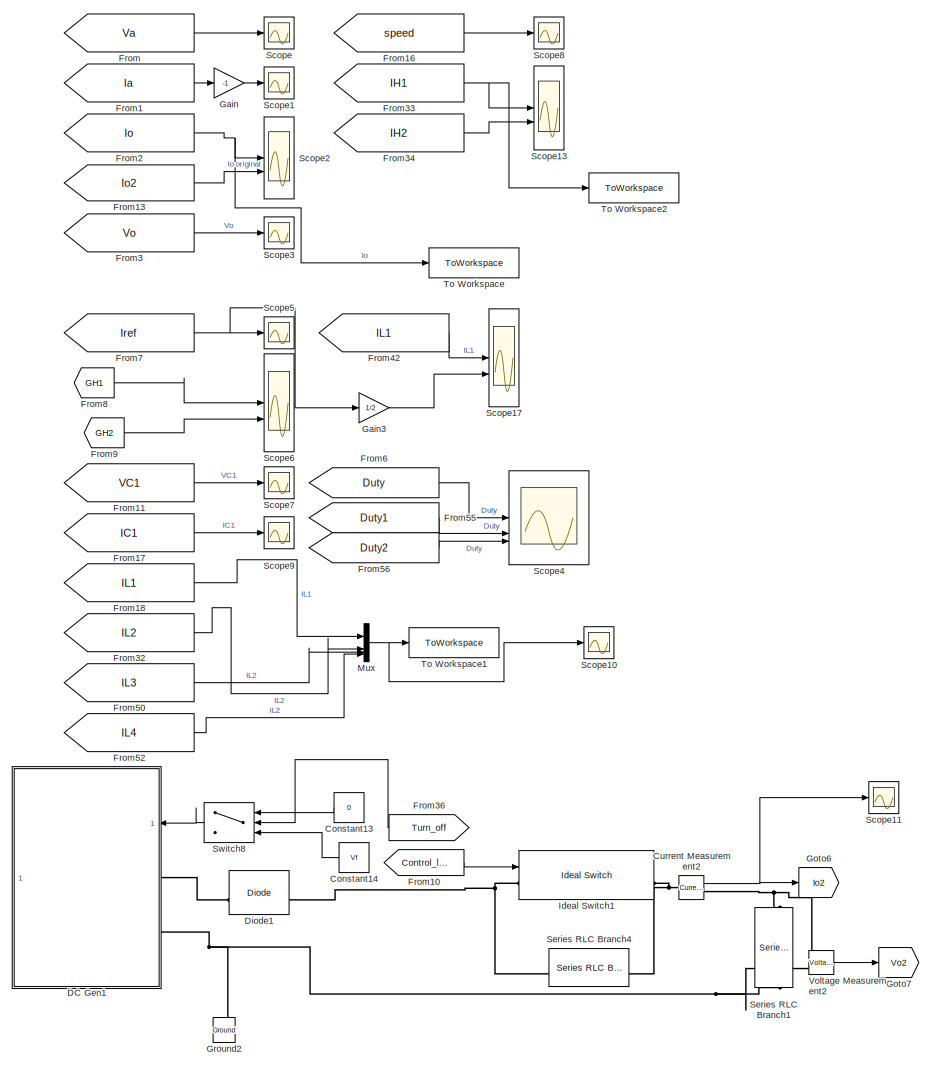
[diagram: root canvas - part 1/7, top right region]
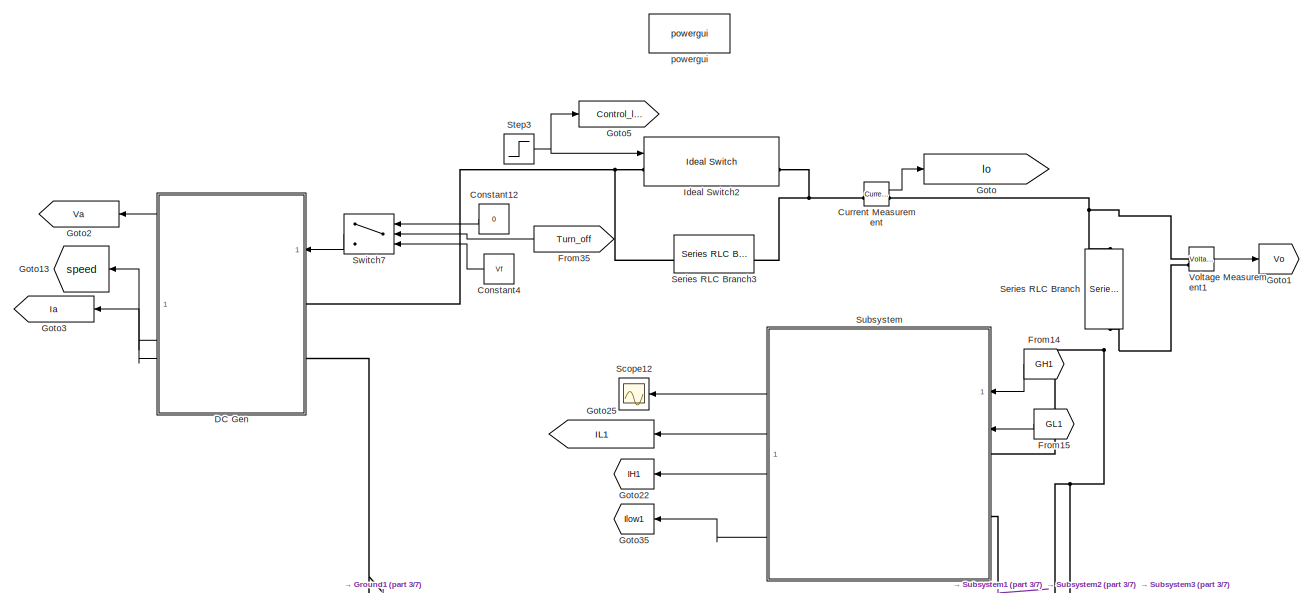
[diagram: root canvas - part 2/7, top center region]
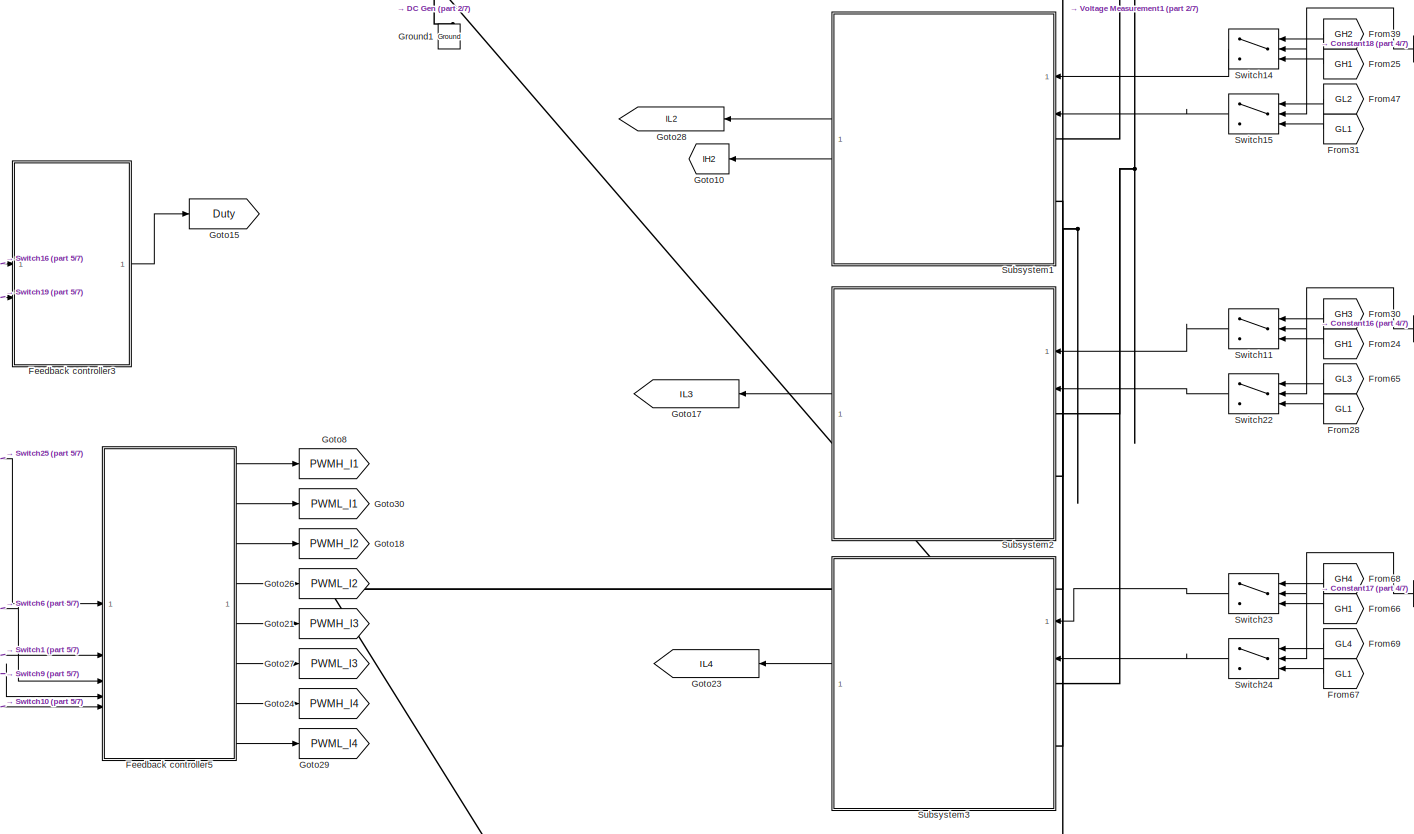
[diagram: root canvas - part 3/7, central region]
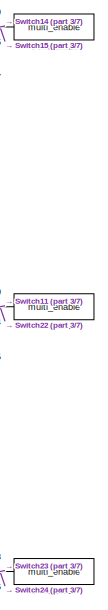
[diagram: root canvas - part 4/7, central region]
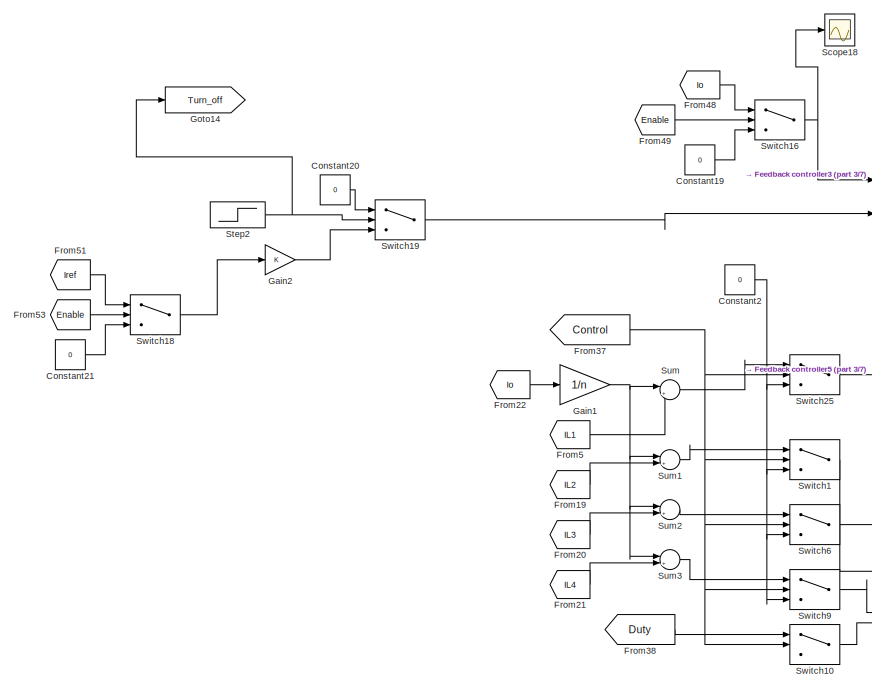
[diagram: root canvas - part 5/7, middle left region]
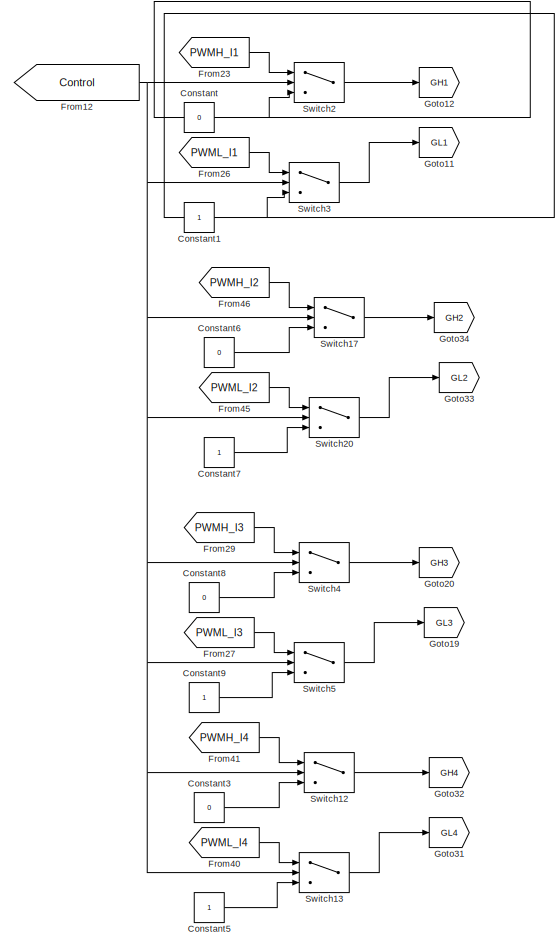
[diagram: root canvas - part 6/7, bottom right region]
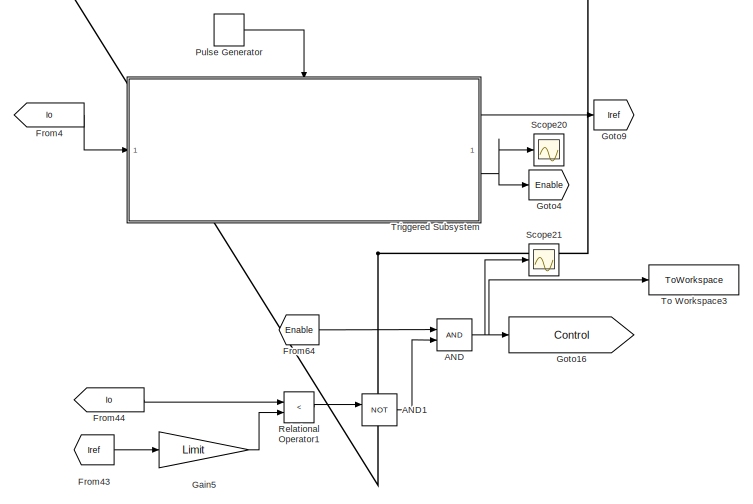
[diagram: root canvas - part 7/7, bottom center region]
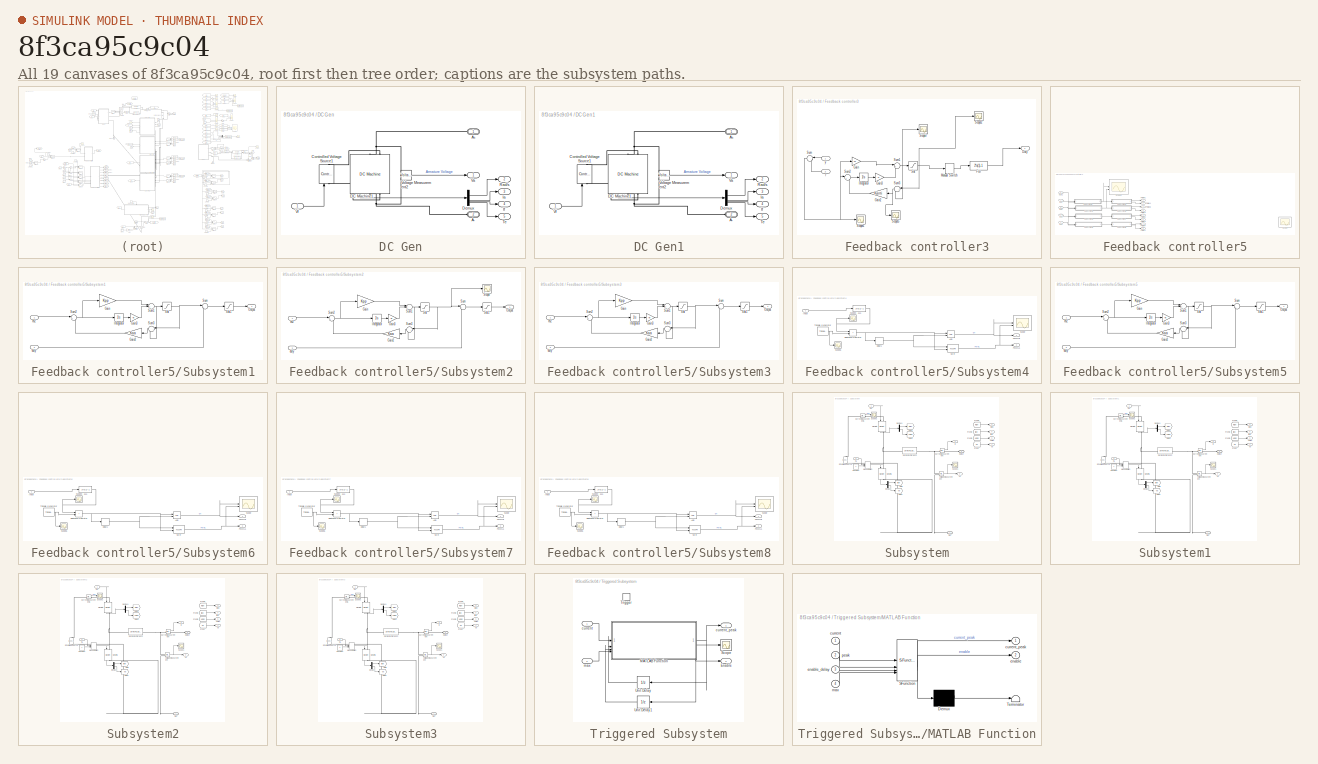
[diagram: thumbnail index - all 19 canvases of the model, root first then tree order]
MODEL slx_8f3ca95c9c04
KIND model
CONFIG AbsTol = auto
CONFIG EnableMultiTasking = off
CONFIG FixedStep = auto
CONFIG MaxStep = auto
CONFIG MinStep = auto
CONFIG RelTol = 1e-3
CONFIG SampleTimeConstraint = Unconstrained
CONFIG SolverName = VariableStepAuto
CONFIG StartTime = 0.0
CONFIG StopTime = T_end
BLOCK [Logic] AND
  AllPortsSameDT = off
  IconShape = distinctive
  OutDataTypeStr = boolean
BLOCK [Logic] AND1
  AllPortsSameDT = off
  IconShape = distinctive
  Operator = NOT
  OutDataTypeStr = boolean
BLOCK [Constant] Constant
  Value = 0
BLOCK [Constant] Constant1
BLOCK [Constant] Constant12
  NameLocation = top
  Value = 0
BLOCK [Constant] Constant13
  NameLocation = top
  Value = 0
BLOCK [Constant] Constant14
  NameLocation = top
  Value = Vf
BLOCK [Constant] Constant16
  NameLocation = top
  Value = multi_enable
BLOCK [Constant] Constant17
  NameLocation = top
  Value = multi_enable
BLOCK [Constant] Constant18
  NameLocation = top
  Value = multi_enable
BLOCK [Constant] Constant19
  Value = 0
BLOCK [Constant] Constant2
  Value = 0
BLOCK [Constant] Constant20
  Value = 0
BLOCK [Constant] Constant21
  Value = 0
BLOCK [Constant] Constant3
  Value = 0
BLOCK [Constant] Constant4
  NameLocation = top
  Value = Vf
BLOCK [Constant] Constant5
BLOCK [Constant] Constant6
  Value = 0
BLOCK [Constant] Constant7
BLOCK [Constant] Constant8
  Value = 0
BLOCK [Constant] Constant9
BLOCK [Reference] Current Measurement  REF=spsCurrentMeasurementLib/Current Measurement
  LibrarySourceBlock = sps_lib/Sensors and Measurements/Current Measurement
  SourceBlock = spsCurrentMeasurementLib/Current Measurement
  SourceType = Current Measurement
  UserDataPersistent = on
BLOCK [Reference] Current Measurement2  REF=spsCurrentMeasurementLib/Current Measurement
  LibrarySourceBlock = sps_lib/Sensors and Measurements/Current Measurement
  SourceBlock = spsCurrentMeasurementLib/Current Measurement
  SourceType = Current Measurement
  UserDataPersistent = on
BLOCK [SubSystem] DC Gen
  NameLocation = top
BLOCK [PMIOPort] DC Gen/A+
  NameLocation = top
  Side = Left
BLOCK [PMIOPort] DC Gen/A-
  NameLocation = top
  Port = 2
  Side = Left
BLOCK [Reference] DC Gen/Controlled Voltage Source1  REF=spsControlledVoltageSourceLib/Controlled Voltage Source
  LibrarySourceBlock = sps_lib/Sources/Controlled Voltage Source
  NameLocation = right
  SourceBlock = spsControlledVoltageSourceLib/Controlled Voltage Source
  SourceType = Controlled Voltage Source
BLOCK [Reference] DC Gen/DC Machine1  REF=spsDCMachineLib/DC Machine
  LibrarySourceBlock = sps_lib/Electrical Machines/DC Machine
  NameLocation = left
  SourceBlock = spsDCMachineLib/DC Machine
  SourceType = DC machine
BLOCK [Demux] DC Gen/Demux
BLOCK [Outport] DC Gen/Ia
  Port = 3
BLOCK [Outport] DC Gen/If
  Port = 4
BLOCK [Outport] DC Gen/Rad//s
  Port = 2
BLOCK [Outport] DC Gen/Te
  Port = 5
BLOCK [Outport] DC Gen/Va
BLOCK [Inport] DC Gen/Vf
BLOCK [Reference] DC Gen/Voltage Measurement2  REF=spsVoltageMeasurementLib/Voltage Measurement
  LibrarySourceBlock = sps_lib/Sensors and Measurements/Voltage Measurement
  SourceBlock = spsVoltageMeasurementLib/Voltage Measurement
  SourceType = Voltage Measurement
  UserDataPersistent = on
BLOCK [SubSystem] DC Gen1
  NameLocation = top
BLOCK [PMIOPort] DC Gen1/A+
  NameLocation = top
  Side = Left
BLOCK [PMIOPort] DC Gen1/A-
  NameLocation = top
  Port = 2
  Side = Left
BLOCK [Reference] DC Gen1/Controlled Voltage Source1  REF=spsControlledVoltageSourceLib/Controlled Voltage Source
  LibrarySourceBlock = sps_lib/Sources/Controlled Voltage Source
  NameLocation = right
  SourceBlock = spsControlledVoltageSourceLib/Controlled Voltage Source
  SourceType = Controlled Voltage Source
BLOCK [Reference] DC Gen1/DC Machine1  REF=spsDCMachineLib/DC Machine
  LibrarySourceBlock = sps_lib/Electrical Machines/DC Machine
  NameLocation = left
  SourceBlock = spsDCMachineLib/DC Machine
  SourceType = DC machine
BLOCK [Demux] DC Gen1/Demux
BLOCK [Outport] DC Gen1/Ia
  Port = 3
BLOCK [Outport] DC Gen1/If
  Port = 4
BLOCK [Outport] DC Gen1/Rad//s
  Port = 2
BLOCK [Outport] DC Gen1/Te
  Port = 5
BLOCK [Outport] DC Gen1/Va
BLOCK [Inport] DC Gen1/Vf
BLOCK [Reference] DC Gen1/Voltage Measurement2  REF=spsVoltageMeasurementLib/Voltage Measurement
  LibrarySourceBlock = sps_lib/Sensors and Measurements/Voltage Measurement
  SourceBlock = spsVoltageMeasurementLib/Voltage Measurement
  SourceType = Voltage Measurement
  UserDataPersistent = on
BLOCK [Reference] Diode1  REF=spsDiodeLib/Diode
  LibrarySourceBlock = sps_lib/Power Electronics/Diode
  SourceBlock = spsDiodeLib/Diode
  SourceType = Diode
BLOCK [SubSystem] Feedback controller3
  NameLocation = top
BLOCK [Outport] Feedback controller3/Duty
  VectorParamsAs1DForOutWhenUnconnected = off
BLOCK [Fcn] Feedback controller3/Fcn
  Expr = 2*u(1)-1
BLOCK [Gain] Feedback controller3/Gain
  Gain = Kp
BLOCK [Gain] Feedback controller3/Gain2
  Gain = Kanti
  NameLocation = top
BLOCK [Gain] Feedback controller3/Gain3
  Gain = Ki
BLOCK [Integrator] Feedback controller3/Integrator
BLOCK [ManualSwitch] Feedback controller3/Manual Switch
BLOCK [Saturate] Feedback controller3/Sat
  LowerLimit = 0
  UpperLimit = 1
BLOCK [Scope] Feedback controller3/Scope1
  Floating = off
  NumInputPorts = 1
  ScopeSpecificationString = Simulink.scopes.TimeScopeBlockCfg('CurrentConfiguration', extmgr.ConfigurationSet(extmgr.Configuration('Core','General UI',true),extmgr.Configuration('Core','Source UI',true),extmgr.Configuration('Sources','WiredSimulink',true,'DataLoggingVariableName','ScopeData15'),extmgr.Configuration('Visuals','Time Domain',true,'SerializedDisplays',{struct('MinYLimReal','-442.85645','MaxYLimReal','88.31447','...<+1446ch>
BLOCK [Scope] Feedback controller3/Scope2
  Floating = off
  NumInputPorts = 1
  ScopeSpecificationString = Simulink.scopes.TimeScopeBlockCfg('CurrentConfiguration', extmgr.ConfigurationSet(extmgr.Configuration('Core','General UI',true),extmgr.Configuration('Core','Source UI',true),extmgr.Configuration('Sources','WiredSimulink',true,'DataLoggingVariableName','ScopeData2'),extmgr.Configuration('Visuals','Time Domain',true,'SerializedDisplays',{struct('MinYLimReal','-0.125','MaxYLimReal','1.125','YLabelRe...<+1423ch>
BLOCK [Scope] Feedback controller3/Scope5
  Floating = off
  NumInputPorts = 1
  ScopeSpecificationString = Simulink.scopes.TimeScopeBlockCfg('CurrentConfiguration', extmgr.ConfigurationSet(extmgr.Configuration('Core','General UI',true),extmgr.Configuration('Core','Source UI',true),extmgr.Configuration('Sources','WiredSimulink',true,'DataLoggingVariableName','ScopeData1'),extmgr.Configuration('Visuals','Time Domain',true,'SerializedDisplays',{struct('MinYLimReal','-219248.39619','MaxYLimReal','24360.932...<+1472ch>
BLOCK [Scope] Feedback controller3/Scope7
  Floating = off
  NumInputPorts = 1
  ScopeSpecificationString = Simulink.scopes.TimeScopeBlockCfg('CurrentConfiguration', extmgr.ConfigurationSet(extmgr.Configuration('Core','General UI',true),extmgr.Configuration('Core','Source UI',true),extmgr.Configuration('Sources','WiredSimulink',true,'DataLoggingVariableName','ScopeData3'),extmgr.Configuration('Visuals','Time Domain',true,'SerializedDisplays',{struct('MinYLimReal','-24361.05791','MaxYLimReal','219249.521...<+1470ch>
BLOCK [Sum] Feedback controller3/Sum
  InputSameDT = on
  Inputs = |-+
  OutDataTypeStr = Inherit: Same as first input
  SaturateOnIntegerOverflow = on
BLOCK [Sum] Feedback controller3/Sum1
  Inputs = |++
BLOCK [Sum] Feedback controller3/Sum2
  Inputs = |+-
BLOCK [Sum] Feedback controller3/Sum3
  Inputs = |+-
  NameLocation = top
BLOCK [Inport] Feedback controller3/r
  Port = 2
BLOCK [Inport] Feedback controller3/y
BLOCK [SubSystem] Feedback controller5
  NameLocation = top
BLOCK [Outport] Feedback controller5/PWMH1
  VectorParamsAs1DForOutWhenUnconnected = off
BLOCK [Outport] Feedback controller5/PWMH2
  Port = 3
  VectorParamsAs1DForOutWhenUnconnected = off
BLOCK [Outport] Feedback controller5/PWMH3
  Port = 5
  VectorParamsAs1DForOutWhenUnconnected = off
BLOCK [Outport] Feedback controller5/PWMH4
  Port = 7
  VectorParamsAs1DForOutWhenUnconnected = off
BLOCK [Outport] Feedback controller5/PWML1
  Port = 2
  VectorParamsAs1DForOutWhenUnconnected = off
BLOCK [Outport] Feedback controller5/PWML2
  Port = 4
  VectorParamsAs1DForOutWhenUnconnected = off
BLOCK [Outport] Feedback controller5/PWML3
  Port = 6
  VectorParamsAs1DForOutWhenUnconnected = off
BLOCK [Outport] Feedback controller5/PWML4
  Port = 8
  VectorParamsAs1DForOutWhenUnconnected = off
BLOCK [Scope] Feedback controller5/Scope
  Floating = off
  NumInputPorts = 2
  ScopeSpecificationString = Simulink.scopes.TimeScopeBlockCfg('CurrentConfiguration', extmgr.ConfigurationSet(extmgr.Configuration('Core','General UI',true),extmgr.Configuration('Core','Source UI',true),extmgr.Configuration('Sources','WiredSimulink',true,'DataLoggingVariableName','ScopeData3'),extmgr.Configuration('Visuals','Time Domain',true,'SerializedDisplays',{struct('MinYLimReal','-0.125','MaxYLimReal','1.125','YLabelRe...<+1730ch>
BLOCK [Scope] Feedback controller5/Scope2
  Floating = off
  NumInputPorts = 2
  ScopeSpecificationString = Simulink.scopes.TimeScopeBlockCfg('CurrentConfiguration', extmgr.ConfigurationSet(extmgr.Configuration('Core','General UI',true),extmgr.Configuration('Core','Source UI',true),extmgr.Configuration('Sources','WiredSimulink',true,'DataLoggingVariableName','ScopeData2'),extmgr.Configuration('Visuals','Time Domain',true,'SerializedDisplays',{struct('MinYLimReal','-0.125','MaxYLimReal','1.125','YLabelRe...<+1444ch>
BLOCK [SubSystem] Feedback controller5/Subsystem1
BLOCK [Gain] Feedback controller5/Subsystem1/Gain
  Gain = Kpp
BLOCK [Gain] Feedback controller5/Subsystem1/Gain2
  Gain = Kaa
  NameLocation = top
BLOCK [Gain] Feedback controller5/Subsystem1/Gain3
  Gain = Kii
BLOCK [Integrator] Feedback controller5/Subsystem1/Integrator
BLOCK [Outport] Feedback controller5/Subsystem1/Output
BLOCK [Saturate] Feedback controller5/Subsystem1/Sat
  LowerLimit = -1
  UpperLimit = 1
BLOCK [Saturate] Feedback controller5/Subsystem1/Sat1
  LowerLimit = 0
  UpperLimit = 1
BLOCK [Sum] Feedback controller5/Subsystem1/Sum
  Inputs = |++
BLOCK [Sum] Feedback controller5/Subsystem1/Sum1
  Inputs = |+++
BLOCK [Sum] Feedback controller5/Subsystem1/Sum2
  Inputs = |+-
BLOCK [Sum] Feedback controller5/Subsystem1/Sum3
  Inputs = |+-
  NameLocation = top
BLOCK [Inport] Feedback controller5/Subsystem1/duty
  Port = 2
BLOCK [Inport] Feedback controller5/Subsystem1/eo2
BLOCK [SubSystem] Feedback controller5/Subsystem2
BLOCK [Gain] Feedback controller5/Subsystem2/Gain
  Gain = Kpp
BLOCK [Gain] Feedback controller5/Subsystem2/Gain2
  Gain = Kaa
  NameLocation = top
BLOCK [Gain] Feedback controller5/Subsystem2/Gain3
  Gain = Kii
BLOCK [Integrator] Feedback controller5/Subsystem2/Integrator
BLOCK [Outport] Feedback controller5/Subsystem2/Output
BLOCK [Saturate] Feedback controller5/Subsystem2/Sat
  LowerLimit = -1
  UpperLimit = 1
BLOCK [Saturate] Feedback controller5/Subsystem2/Sat1
  LowerLimit = 0
  UpperLimit = 1
BLOCK [Scope] Feedback controller5/Subsystem2/Scope
  Floating = off
  NumInputPorts = 1
  ScopeSpecificationString = Simulink.scopes.TimeScopeBlockCfg('CurrentConfiguration', extmgr.ConfigurationSet(extmgr.Configuration('Core','General UI',true),extmgr.Configuration('Core','Source UI',true),extmgr.Configuration('Sources','WiredSimulink',true,'DataLoggingVariableName','ScopeData4'),extmgr.Configuration('Visuals','Time Domain',true,'SerializedDisplays',{struct('MinYLimReal','-1.25','MaxYLimReal','1.25','YLabelReal...<+1363ch>
BLOCK [Sum] Feedback controller5/Subsystem2/Sum
  Inputs = |++
BLOCK [Sum] Feedback controller5/Subsystem2/Sum1
  Inputs = |+++
BLOCK [Sum] Feedback controller5/Subsystem2/Sum2
  Inputs = |+-
BLOCK [Sum] Feedback controller5/Subsystem2/Sum3
  Inputs = |+-
  NameLocation = top
BLOCK [Inport] Feedback controller5/Subsystem2/duty
  Port = 2
BLOCK [Inport] Feedback controller5/Subsystem2/eo2
BLOCK [SubSystem] Feedback controller5/Subsystem3
BLOCK [Gain] Feedback controller5/Subsystem3/Gain
  Gain = Kpp
BLOCK [Gain] Feedback controller5/Subsystem3/Gain2
  Gain = Kaa
  NameLocation = top
BLOCK [Gain] Feedback controller5/Subsystem3/Gain3
  Gain = Kii
BLOCK [Integrator] Feedback controller5/Subsystem3/Integrator
BLOCK [Outport] Feedback controller5/Subsystem3/Output
BLOCK [Saturate] Feedback controller5/Subsystem3/Sat
  LowerLimit = -1
  UpperLimit = 1
BLOCK [Saturate] Feedback controller5/Subsystem3/Sat1
  LowerLimit = 0
  UpperLimit = 1
BLOCK [Sum] Feedback controller5/Subsystem3/Sum
  Inputs = |++
BLOCK [Sum] Feedback controller5/Subsystem3/Sum1
  Inputs = |+++
BLOCK [Sum] Feedback controller5/Subsystem3/Sum2
  Inputs = |+-
BLOCK [Sum] Feedback controller5/Subsystem3/Sum3
  Inputs = |+-
  NameLocation = top
BLOCK [Inport] Feedback controller5/Subsystem3/duty
  Port = 2
BLOCK [Inport] Feedback controller5/Subsystem3/eo2
BLOCK [SubSystem] Feedback controller5/Subsystem4
BLOCK [Logic] Feedback controller5/Subsystem4/AND
  AllPortsSameDT = off
  IconShape = distinctive
  OutDataTypeStr = boolean
BLOCK [Delay] Feedback controller5/Subsystem4/Delay1
  DelayLength = 1
  InitialCondition = 0
  InputPortMap = u0
  SampleTime = Tdead
BLOCK [Fcn] Feedback controller5/Subsystem4/Fcn
  Expr = 2*u(1)-1
BLOCK [Inport] Feedback controller5/Subsystem4/Input
BLOCK [Logic] Feedback controller5/Subsystem4/NOR
  AllPortsSameDT = off
  IconShape = distinctive
  Operator = NOR
BLOCK [Outport] Feedback controller5/Subsystem4/PWMH1
  VectorParamsAs1DForOutWhenUnconnected = off
BLOCK [Outport] Feedback controller5/Subsystem4/PWML1
  Port = 2
  VectorParamsAs1DForOutWhenUnconnected = off
BLOCK [RelationalOperator] Feedback controller5/Subsystem4/Relational Operator
  InputSameDT = off
  Operator = >
  OutDataTypeStr = boolean
  RndMeth = Simplest
BLOCK [Scope] Feedback controller5/Subsystem4/Scope
  Floating = off
  NumInputPorts = 2
  ScopeSpecificationString = Simulink.scopes.TimeScopeBlockCfg('CurrentConfiguration', extmgr.ConfigurationSet(extmgr.Configuration('Core','General UI',true),extmgr.Configuration('Core','Source UI',true),extmgr.Configuration('Sources','WiredSimulink',true,'DataLoggingVariableName','ScopeData1'),extmgr.Configuration('Visuals','Time Domain',true,'SerializedDisplays',{struct('MinYLimReal','-0.125','MaxYLimReal','1.125','YLabelRe...<+1730ch>  <repeated x4 — deduplicated; at blocks: Scope>
BLOCK [Scope] Feedback controller5/Subsystem4/Scope3
  Floating = off
  NumInputPorts = 1
  ScopeSpecificationString = Simulink.scopes.TimeScopeBlockCfg('CurrentConfiguration', extmgr.ConfigurationSet(extmgr.Configuration('Core','General UI',true),extmgr.Configuration('Core','Source UI',true),extmgr.Configuration('Sources','WiredSimulink',true,'DataLoggingVariableName','ScopeData2'),extmgr.Configuration('Visuals','Time Domain',true,'SerializedDisplays',{struct('MinYLimReal','-1.20241','MaxYLimReal','0.8217','YLabe...<+1434ch>  <repeated x4 — deduplicated; at blocks: Scope3>
BLOCK [Scope] Feedback controller5/Subsystem4/Scope6
  Floating = off
  NumInputPorts = 1
  ScopeSpecificationString = Simulink.scopes.TimeScopeBlockCfg('CurrentConfiguration', extmgr.ConfigurationSet(extmgr.Configuration('Core','General UI',true),extmgr.Configuration('Core','Source UI',true),extmgr.Configuration('Sources','WiredSimulink',true,'DataLoggingVariableName','ScopeData3'),extmgr.Configuration('Visuals','Time Domain',true,'SerializedDisplays',{struct('MinYLimReal','-1.20241','MaxYLimReal','0.8217','YLabe...<+1434ch>  <repeated x4 — deduplicated; at blocks: Scope6>
BLOCK [Reference] Feedback controller5/Subsystem4/Triangle Generator  REF=spsTriangleGeneratorLib/Triangle
Generator
  LibrarySourceBlock = sps_lib/Sources/Signal Generator Sources/Triangle\nGenerator
  SourceBlock = spsTriangleGeneratorLib/Triangle\nGenerator
  SourceType = Triangle Generator
BLOCK [SubSystem] Feedback controller5/Subsystem5
BLOCK [Gain] Feedback controller5/Subsystem5/Gain
  Gain = Kpp
BLOCK [Gain] Feedback controller5/Subsystem5/Gain2
  Gain = Kaa
  NameLocation = top
BLOCK [Gain] Feedback controller5/Subsystem5/Gain3
  Gain = Kii
BLOCK [Integrator] Feedback controller5/Subsystem5/Integrator
BLOCK [Outport] Feedback controller5/Subsystem5/Output
BLOCK [Saturate] Feedback controller5/Subsystem5/Sat
  LowerLimit = -1
  UpperLimit = 1
BLOCK [Saturate] Feedback controller5/Subsystem5/Sat1
  LowerLimit = 0
  UpperLimit = 1
BLOCK [Sum] Feedback controller5/Subsystem5/Sum
  Inputs = |++
BLOCK [Sum] Feedback controller5/Subsystem5/Sum1
  Inputs = |+++
BLOCK [Sum] Feedback controller5/Subsystem5/Sum2
  Inputs = |+-
BLOCK [Sum] Feedback controller5/Subsystem5/Sum3
  Inputs = |+-
  NameLocation = top
BLOCK [Inport] Feedback controller5/Subsystem5/duty
  Port = 2
BLOCK [Inport] Feedback controller5/Subsystem5/eo2
BLOCK [SubSystem] Feedback controller5/Subsystem6
BLOCK [Logic] Feedback controller5/Subsystem6/AND
  AllPortsSameDT = off
  IconShape = distinctive
  OutDataTypeStr = boolean
BLOCK [Delay] Feedback controller5/Subsystem6/Delay1
  DelayLength = 1
  InitialCondition = 0
  InputPortMap = u0
  SampleTime = Tdead
BLOCK [Fcn] Feedback controller5/Subsystem6/Fcn
  Expr = 2*u(1)-1
BLOCK [Inport] Feedback controller5/Subsystem6/Input
BLOCK [Logic] Feedback controller5/Subsystem6/NOR
  AllPortsSameDT = off
  IconShape = distinctive
  Operator = NOR
BLOCK [Outport] Feedback controller5/Subsystem6/PWMH1
  VectorParamsAs1DForOutWhenUnconnected = off
BLOCK [Outport] Feedback controller5/Subsystem6/PWML1
  Port = 2
  VectorParamsAs1DForOutWhenUnconnected = off
BLOCK [RelationalOperator] Feedback controller5/Subsystem6/Relational Operator
  InputSameDT = off
  Operator = >
  OutDataTypeStr = boolean
  RndMeth = Simplest
BLOCK [Scope] Feedback controller5/Subsystem6/Scope
  Floating = off
  NumInputPorts = 2
BLOCK [Scope] Feedback controller5/Subsystem6/Scope3
  Floating = off
  NumInputPorts = 1
BLOCK [Scope] Feedback controller5/Subsystem6/Scope6
  Floating = off
  NumInputPorts = 1
BLOCK [Reference] Feedback controller5/Subsystem6/Triangle Generator  REF=spsTriangleGeneratorLib/Triangle
Generator
  LibrarySourceBlock = sps_lib/Sources/Signal Generator Sources/Triangle\nGenerator
  SourceBlock = spsTriangleGeneratorLib/Triangle\nGenerator
  SourceType = Triangle Generator
BLOCK [SubSystem] Feedback controller5/Subsystem7
BLOCK [Logic] Feedback controller5/Subsystem7/AND
  AllPortsSameDT = off
  IconShape = distinctive
  OutDataTypeStr = boolean
BLOCK [Delay] Feedback controller5/Subsystem7/Delay1
  DelayLength = 1
  InitialCondition = 0
  InputPortMap = u0
  SampleTime = Tdead
BLOCK [Fcn] Feedback controller5/Subsystem7/Fcn
  Expr = 2*u(1)-1
BLOCK [Inport] Feedback controller5/Subsystem7/Input
BLOCK [Logic] Feedback controller5/Subsystem7/NOR
  AllPortsSameDT = off
  IconShape = distinctive
  Operator = NOR
BLOCK [Outport] Feedback controller5/Subsystem7/PWMH1
  VectorParamsAs1DForOutWhenUnconnected = off
BLOCK [Outport] Feedback controller5/Subsystem7/PWML1
  Port = 2
  VectorParamsAs1DForOutWhenUnconnected = off
BLOCK [RelationalOperator] Feedback controller5/Subsystem7/Relational Operator
  InputSameDT = off
  Operator = >
  OutDataTypeStr = boolean
  RndMeth = Simplest
BLOCK [Scope] Feedback controller5/Subsystem7/Scope
  Floating = off
  NumInputPorts = 2
BLOCK [Scope] Feedback controller5/Subsystem7/Scope3
  Floating = off
  NumInputPorts = 1
BLOCK [Scope] Feedback controller5/Subsystem7/Scope6
  Floating = off
  NumInputPorts = 1
BLOCK [Reference] Feedback controller5/Subsystem7/Triangle Generator  REF=spsTriangleGeneratorLib/Triangle
Generator
  LibrarySourceBlock = sps_lib/Sources/Signal Generator Sources/Triangle\nGenerator
  SourceBlock = spsTriangleGeneratorLib/Triangle\nGenerator
  SourceType = Triangle Generator
BLOCK [SubSystem] Feedback controller5/Subsystem8
BLOCK [Logic] Feedback controller5/Subsystem8/AND
  AllPortsSameDT = off
  IconShape = distinctive
  OutDataTypeStr = boolean
BLOCK [Delay] Feedback controller5/Subsystem8/Delay1
  DelayLength = 1
  InitialCondition = 0
  InputPortMap = u0
  SampleTime = Tdead
BLOCK [Fcn] Feedback controller5/Subsystem8/Fcn
  Expr = 2*u(1)-1
BLOCK [Inport] Feedback controller5/Subsystem8/Input
BLOCK [Logic] Feedback controller5/Subsystem8/NOR
  AllPortsSameDT = off
  IconShape = distinctive
  Operator = NOR
BLOCK [Outport] Feedback controller5/Subsystem8/PWMH1
  VectorParamsAs1DForOutWhenUnconnected = off
BLOCK [Outport] Feedback controller5/Subsystem8/PWML1
  Port = 2
  VectorParamsAs1DForOutWhenUnconnected = off
BLOCK [RelationalOperator] Feedback controller5/Subsystem8/Relational Operator
  InputSameDT = off
  Operator = >
  OutDataTypeStr = boolean
  RndMeth = Simplest
BLOCK [Scope] Feedback controller5/Subsystem8/Scope
  Floating = off
  NumInputPorts = 2
BLOCK [Scope] Feedback controller5/Subsystem8/Scope3
  Floating = off
  NumInputPorts = 1
BLOCK [Scope] Feedback controller5/Subsystem8/Scope6
  Floating = off
  NumInputPorts = 1
BLOCK [Reference] Feedback controller5/Subsystem8/Triangle Generator  REF=spsTriangleGeneratorLib/Triangle
Generator
  LibrarySourceBlock = sps_lib/Sources/Signal Generator Sources/Triangle\nGenerator
  SourceBlock = spsTriangleGeneratorLib/Triangle\nGenerator
  SourceType = Triangle Generator
BLOCK [Inport] Feedback controller5/duty1
  NameLocation = top
  Port = 5
BLOCK [Inport] Feedback controller5/eo1
BLOCK [Inport] Feedback controller5/eo2
  Port = 2
BLOCK [Inport] Feedback controller5/eo3
  Port = 3
BLOCK [Inport] Feedback controller5/eo4
  Port = 4
BLOCK [From] From
  GotoTag = Va
BLOCK [From] From1
  GotoTag = Ia
BLOCK [From] From10
  GotoTag = Control_load
BLOCK [From] From11
  GotoTag = VC1
BLOCK [From] From12
  GotoTag = Control
BLOCK [From] From13
  GotoTag = Io2
BLOCK [From] From14
  GotoTag = GH1
  NameLocation = top
BLOCK [From] From15
  GotoTag = GL1
  NameLocation = top
BLOCK [From] From16
  GotoTag = speed
BLOCK [From] From17
  GotoTag = IC1
BLOCK [From] From18
  GotoTag = IL1
BLOCK [From] From19
  GotoTag = IL2
BLOCK [From] From2
  GotoTag = Io
BLOCK [From] From20
  GotoTag = IL3
BLOCK [From] From21
  GotoTag = IL4
BLOCK [From] From22
  GotoTag = Io
BLOCK [From] From23
  GotoTag = PWMH_I1
BLOCK [From] From24
  GotoTag = GH1
  NameLocation = top
BLOCK [From] From25
  GotoTag = GH1
  NameLocation = top
BLOCK [From] From26
  GotoTag = PWML_I1
BLOCK [From] From27
  GotoTag = PWML_I3
BLOCK [From] From28
  GotoTag = GL1
  NameLocation = top
BLOCK [From] From29
  GotoTag = PWMH_I3
BLOCK [From] From3
  GotoTag = Vo
BLOCK [From] From30
  GotoTag = GH3
  NameLocation = top
BLOCK [From] From31
  GotoTag = GL1
  NameLocation = top
BLOCK [From] From32
  GotoTag = IL2
BLOCK [From] From33
  GotoTag = IH1
BLOCK [From] From34
  GotoTag = IH2
BLOCK [From] From35
  GotoTag = Turn_off
  NameLocation = top
BLOCK [From] From36
  GotoTag = Turn_off
  NameLocation = top
BLOCK [From] From37
  GotoTag = Control
BLOCK [From] From38
  GotoTag = Duty
BLOCK [From] From39
  GotoTag = GH2
  NameLocation = top
BLOCK [From] From4
  GotoTag = Io
BLOCK [From] From40
  GotoTag = PWML_I4
BLOCK [From] From41
  GotoTag = PWMH_I4
BLOCK [From] From42
  GotoTag = IL1
BLOCK [From] From43
  GotoTag = Iref
BLOCK [From] From44
  GotoTag = Io
BLOCK [From] From45
  GotoTag = PWML_I2
BLOCK [From] From46
  GotoTag = PWMH_I2
BLOCK [From] From47
  GotoTag = GL2
  NameLocation = top
BLOCK [From] From48
  GotoTag = Io
BLOCK [From] From49
  GotoTag = Enable
BLOCK [From] From5
  GotoTag = IL1
BLOCK [From] From50
  GotoTag = IL3
BLOCK [From] From51
  GotoTag = Iref
BLOCK [From] From52
  GotoTag = IL4
BLOCK [From] From53
  GotoTag = Enable
BLOCK [From] From55
  GotoTag = Duty1
BLOCK [From] From56
  GotoTag = Duty2
BLOCK [From] From6
  GotoTag = Duty
BLOCK [From] From64
  GotoTag = Enable
BLOCK [From] From65
  GotoTag = GL3
  NameLocation = top
BLOCK [From] From66
  GotoTag = GH1
  NameLocation = top
BLOCK [From] From67
  GotoTag = GL1
  NameLocation = top
BLOCK [From] From68
  GotoTag = GH4
  NameLocation = top
BLOCK [From] From69
  GotoTag = GL4
  NameLocation = top
BLOCK [From] From7
  GotoTag = Iref
BLOCK [From] From8
  GotoTag = GH1
  NameLocation = top
BLOCK [From] From9
  GotoTag = GH2
  NameLocation = top
BLOCK [Gain] Gain
  Gain = -1
BLOCK [Gain] Gain1
  Gain = 1/n
BLOCK [Gain] Gain2
BLOCK [Gain] Gain3
  Gain = 1/2
BLOCK [Gain] Gain5
  Gain = Limit
BLOCK [Goto] Goto
  GotoTag = Io
BLOCK [Goto] Goto1
  GotoTag = Vo
BLOCK [Goto] Goto10
  GotoTag = IH2
  NameLocation = top
BLOCK [Goto] Goto11
  GotoTag = GL1
BLOCK [Goto] Goto12
  GotoTag = GH1
BLOCK [Goto] Goto13
  GotoTag = speed
  NameLocation = top
BLOCK [Goto] Goto14
  GotoTag = Turn_off
BLOCK [Goto] Goto15
  GotoTag = Duty
BLOCK [Goto] Goto16
  GotoTag = Control
BLOCK [Goto] Goto17
  GotoTag = IL3
  NameLocation = top
BLOCK [Goto] Goto18
  GotoTag = PWMH_I2
BLOCK [Goto] Goto19
  GotoTag = GL3
BLOCK [Goto] Goto2
  GotoTag = Va
  NameLocation = top
BLOCK [Goto] Goto20
  GotoTag = GH3
BLOCK [Goto] Goto21
  GotoTag = PWMH_I3
BLOCK [Goto] Goto22
  GotoTag = IH1
  NameLocation = top
BLOCK [Goto] Goto23
  GotoTag = IL4
  NameLocation = top
BLOCK [Goto] Goto24
  GotoTag = PWMH_I4
BLOCK [Goto] Goto25
  GotoTag = IL1
  NameLocation = top
BLOCK [Goto] Goto26
  GotoTag = PWML_I2
BLOCK [Goto] Goto27
  GotoTag = PWML_I3
BLOCK [Goto] Goto28
  GotoTag = IL2
  NameLocation = top
BLOCK [Goto] Goto29
  GotoTag = PWML_I4
BLOCK [Goto] Goto3
  GotoTag = Ia
  NameLocation = top
BLOCK [Goto] Goto30
  GotoTag = PWML_I1
BLOCK [Goto] Goto31
  GotoTag = GL4
BLOCK [Goto] Goto32
  GotoTag = GH4
BLOCK [Goto] Goto33
  GotoTag = GL2
BLOCK [Goto] Goto34
  GotoTag = GH2
BLOCK [Goto] Goto35
  GotoTag = Ilow1
  NameLocation = top
BLOCK [Goto] Goto4
  GotoTag = Enable
BLOCK [Goto] Goto5
  GotoTag = Control_load
BLOCK [Goto] Goto6
  GotoTag = Io2
BLOCK [Goto] Goto7
  GotoTag = Vo2
BLOCK [Goto] Goto8
  GotoTag = PWMH_I1
BLOCK [Goto] Goto9
  GotoTag = Iref
BLOCK [Reference] Ground1  REF=spsGroundLib/Ground
  LibrarySourceBlock = sps_lib/Utilities/Ground
  NameLocation = right
  SourceBlock = spsGroundLib/Ground
  SourceType = Ground
BLOCK [Reference] Ground2  REF=spsGroundLib/Ground
  LibrarySourceBlock = sps_lib/Utilities/Ground
  NameLocation = right
  SourceBlock = spsGroundLib/Ground
  SourceType = Ground
BLOCK [Reference] Ideal Switch1  REF=spsIdealSwitchLib/Ideal Switch
  LibrarySourceBlock = sps_lib/Power Electronics/Ideal Switch
  SourceBlock = spsIdealSwitchLib/Ideal Switch
  SourceType = Ideal Switch
BLOCK [Reference] Ideal Switch2  REF=spsIdealSwitchLib/Ideal Switch
  LibrarySourceBlock = sps_lib/Power Electronics/Ideal Switch
  SourceBlock = spsIdealSwitchLib/Ideal Switch
  SourceType = Ideal Switch
BLOCK [Mux] Mux
  DisplayOption = bar
BLOCK [DiscretePulseGenerator] Pulse Generator
  Period = Ts
  PulseType = Time based
  PulseWidth = 50
BLOCK [RelationalOperator] Relational Operator1
  InputSameDT = off
  Operator = <
  OutDataTypeStr = boolean
  RndMeth = Simplest
BLOCK [Scope] Scope
  Floating = off
  NumInputPorts = 1
  ScopeSpecificationString = Simulink.scopes.TimeScopeBlockCfg('CurrentConfiguration', extmgr.ConfigurationSet(extmgr.Configuration('Core','General UI',true),extmgr.Configuration('Core','Source UI',true),extmgr.Configuration('Sources','WiredSimulink',true),extmgr.Configuration('Visuals','Time Domain',true,'SerializedDisplays',{struct('MinYLimReal','-1360.97247','MaxYLimReal','1299.37321','YLabelReal','','MinYLimMag','  0.0000...<+1433ch>
BLOCK [Scope] Scope1
  Floating = off
  NumInputPorts = 1
  ScopeSpecificationString = Simulink.scopes.TimeScopeBlockCfg('CurrentConfiguration', extmgr.ConfigurationSet(extmgr.Configuration('Core','General UI',true),extmgr.Configuration('Core','Source UI',true),extmgr.Configuration('Sources','WiredSimulink',true,'DataLoggingVariableName','ScopeData1'),extmgr.Configuration('Visuals','Time Domain',true,'SerializedDisplays',{struct('MinYLimReal','-94.82368','MaxYLimReal','853.41309','Y...<+1447ch>
BLOCK [Scope] Scope10
  Floating = off
  NumInputPorts = 1
  ScopeSpecificationString = Simulink.scopes.TimeScopeBlockCfg('CurrentConfiguration', extmgr.ConfigurationSet(extmgr.Configuration('Core','General UI',true),extmgr.Configuration('Core','Source UI',true),extmgr.Configuration('Sources','WiredSimulink',true,'DataLoggingVariableName','ScopeData5'),extmgr.Configuration('Visuals','Time Domain',true,'SerializedDisplays',{struct('MinYLimReal','-106.34772','MaxYLimReal','603.69979','...<+1467ch>
BLOCK [Scope] Scope11
  Floating = off
  NumInputPorts = 1
  ScopeSpecificationString = Simulink.scopes.TimeScopeBlockCfg('CurrentConfiguration', extmgr.ConfigurationSet(extmgr.Configuration('Core','General UI',true),extmgr.Configuration('Core','Source UI',true),extmgr.Configuration('Sources','WiredSimulink',true,'DataLoggingVariableName','ScopeData3'),extmgr.Configuration('Visuals','Time Domain',true,'SerializedDisplays',{struct('MinYLimReal','-825.33151','MaxYLimReal','7426.96003',...<+1451ch>
BLOCK [Scope] Scope12
  Floating = off
  NameLocation = top
  NumInputPorts = 1
  ScopeSpecificationString = Simulink.scopes.TimeScopeBlockCfg('CurrentConfiguration', extmgr.ConfigurationSet(extmgr.Configuration('Core','General UI',true),extmgr.Configuration('Core','Source UI',true),extmgr.Configuration('Sources','WiredSimulink',true,'DataLoggingVariableName','ScopeData1'),extmgr.Configuration('Visuals','Time Domain',true,'SerializedDisplays',{struct('MinYLimReal','-401.47686','MaxYLimReal','451.71568','...<+1428ch>
BLOCK [Scope] Scope13
  Floating = off
  NumInputPorts = 2
  ScopeSpecificationString = Simulink.scopes.TimeScopeBlockCfg('CurrentConfiguration', extmgr.ConfigurationSet(extmgr.Configuration('Core','General UI',true),extmgr.Configuration('Core','Source UI',true),extmgr.Configuration('Sources','WiredSimulink',true,'DataLoggingVariableName','ScopeData4'),extmgr.Configuration('Visuals','Time Domain',true,'SerializedDisplays',{struct('MinYLimReal','-32.3484','MaxYLimReal','291.1356','YLa...<+1462ch>
BLOCK [Scope] Scope17
  Floating = off
  NumInputPorts = 2
  ScopeSpecificationString = Simulink.scopes.TimeScopeBlockCfg('CurrentConfiguration', extmgr.ConfigurationSet(extmgr.Configuration('Core','General UI',true),extmgr.Configuration('Core','Source UI',true),extmgr.Configuration('Sources','WiredSimulink',true,'DataLoggingVariableName','ScopeData4'),extmgr.Configuration('Visuals','Time Domain',true,'SerializedDisplays',{struct('MinYLimReal','-47.93069','MaxYLimReal','431.37625','Y...<+1451ch>
BLOCK [Scope] Scope18
  Floating = off
  NumInputPorts = 1
  ScopeSpecificationString = Simulink.scopes.TimeScopeBlockCfg('CurrentConfiguration', extmgr.ConfigurationSet(extmgr.Configuration('Core','General UI',true),extmgr.Configuration('Core','Source UI',true),extmgr.Configuration('Sources','WiredSimulink',true,'DataLoggingVariableName','ScopeData4'),extmgr.Configuration('Visuals','Time Domain',true,'SerializedDisplays',{struct('MinYLimReal','-94.82944','MaxYLimReal','853.46498','Y...<+1402ch>
BLOCK [Scope] Scope2
  Floating = off
  NumInputPorts = 2
  ScopeSpecificationString = Simulink.scopes.TimeScopeBlockCfg('CurrentConfiguration', extmgr.ConfigurationSet(extmgr.Configuration('Core','General UI',true),extmgr.Configuration('Core','Source UI',true),extmgr.Configuration('Sources','WiredSimulink',true,'DataLoggingVariableName','ScopeData2'),extmgr.Configuration('Visuals','Time Domain',true,'SerializedDisplays',{struct('MinYLimReal','786.18935','MaxYLimReal','799.02684','Y...<+1462ch>
BLOCK [Scope] Scope20
  Floating = off
  NumInputPorts = 1
  ScopeSpecificationString = Simulink.scopes.TimeScopeBlockCfg('CurrentConfiguration', extmgr.ConfigurationSet(extmgr.Configuration('Core','General UI',true),extmgr.Configuration('Core','Source UI',true),extmgr.Configuration('Sources','WiredSimulink',true,'DataLoggingVariableName','ScopeData4'),extmgr.Configuration('Visuals','Time Domain',true,'SerializedDisplays',{struct('MinYLimReal','-10.00000','MaxYLimReal','10.00000','YL...<+1465ch>
BLOCK [Scope] Scope21
  Floating = off
  NumInputPorts = 1
  ScopeSpecificationString = Simulink.scopes.TimeScopeBlockCfg('CurrentConfiguration', extmgr.ConfigurationSet(extmgr.Configuration('Core','General UI',true),extmgr.Configuration('Core','Source UI',true),extmgr.Configuration('Sources','WiredSimulink',true,'DataLoggingVariableName','ScopeData1'),extmgr.Configuration('Visuals','Time Domain',true,'SerializedDisplays',{struct('MinYLimReal','-10.00000','MaxYLimReal','10.00000','YL...<+1442ch>
BLOCK [Scope] Scope3
  Floating = off
  NumInputPorts = 1
  ScopeSpecificationString = Simulink.scopes.TimeScopeBlockCfg('CurrentConfiguration', extmgr.ConfigurationSet(extmgr.Configuration('Core','General UI',true),extmgr.Configuration('Core','Source UI',true),extmgr.Configuration('Sources','WiredSimulink',true,'DataLoggingVariableName','ScopeData3'),extmgr.Configuration('Visuals','Time Domain',true,'SerializedDisplays',{struct('MinYLimReal','-88.83932','MaxYLimReal','799.52893','Y...<+1390ch>
BLOCK [Scope] Scope4
  Floating = off
  NumInputPorts = 3
  ScopeSpecificationString = Simulink.scopes.TimeScopeBlockCfg('CurrentConfiguration', extmgr.ConfigurationSet(extmgr.Configuration('Core','General UI',true),extmgr.Configuration('Core','Source UI',true),extmgr.Configuration('Sources','WiredSimulink',true,'DataLoggingVariableName','ScopeData2'),extmgr.Configuration('Visuals','Time Domain',true,'SerializedDisplays',{struct('MinYLimReal','-1.25','MaxYLimReal','1.25','YLabelReal...<+1431ch>
BLOCK [Scope] Scope5
  Floating = off
  NumInputPorts = 1
  ScopeSpecificationString = Simulink.scopes.TimeScopeBlockCfg('CurrentConfiguration', extmgr.ConfigurationSet(extmgr.Configuration('Core','General UI',true),extmgr.Configuration('Core','Source UI',true),extmgr.Configuration('Sources','WiredSimulink',true,'DataLoggingVariableName','ScopeData5'),extmgr.Configuration('Visuals','Time Domain',true,'SerializedDisplays',{struct('MinYLimReal','-1.00000','MaxYLimReal','1.00000','YLab...<+1446ch>
BLOCK [Scope] Scope6
  Floating = off
  NumInputPorts = 2
  ScopeSpecificationString = Simulink.scopes.TimeScopeBlockCfg('CurrentConfiguration', extmgr.ConfigurationSet(extmgr.Configuration('Core','General UI',true),extmgr.Configuration('Core','Source UI',true),extmgr.Configuration('Sources','WiredSimulink',true,'DataLoggingVariableName','ScopeData6'),extmgr.Configuration('Visuals','Time Domain',true,'SerializedDisplays',{struct('MinYLimReal','-0.125','MaxYLimReal','1.125','YLabelRe...<+1435ch>
BLOCK [Scope] Scope7
  Floating = off
  NumInputPorts = 1
  ScopeSpecificationString = Simulink.scopes.TimeScopeBlockCfg('CurrentConfiguration', extmgr.ConfigurationSet(extmgr.Configuration('Core','General UI',true),extmgr.Configuration('Core','Source UI',true),extmgr.Configuration('Sources','WiredSimulink',true,'DataLoggingVariableName','ScopeData1'),extmgr.Configuration('Visuals','Time Domain',true,'SerializedDisplays',{struct('MinYLimReal','-64.35042','MaxYLimReal','129.90521','Y...<+1480ch>
BLOCK [Scope] Scope8
  Floating = off
  NumInputPorts = 1
  ScopeSpecificationString = Simulink.scopes.TimeScopeBlockCfg('CurrentConfiguration', extmgr.ConfigurationSet(extmgr.Configuration('Core','General UI',true),extmgr.Configuration('Core','Source UI',true),extmgr.Configuration('Sources','WiredSimulink',true,'DataLoggingVariableName','ScopeData8'),extmgr.Configuration('Visuals','Time Domain',true,'SerializedDisplays',{struct('MinYLimReal','-173.66216','MaxYLimReal','217.09978','...<+1481ch>
BLOCK [Scope] Scope9
  Floating = off
  NumInputPorts = 1
  ScopeSpecificationString = Simulink.scopes.TimeScopeBlockCfg('CurrentConfiguration', extmgr.ConfigurationSet(extmgr.Configuration('Core','General UI',true),extmgr.Configuration('Core','Source UI',true),extmgr.Configuration('Sources','WiredSimulink',true,'DataLoggingVariableName','ScopeData9'),extmgr.Configuration('Visuals','Time Domain',true,'SerializedDisplays',{struct('MinYLimReal','-1.00000','MaxYLimReal','1.00000','YLab...<+1470ch>
BLOCK [Reference] Series RLC Branch  REF=spsSeriesRLCBranchLib/Series RLC Branch
  LibrarySourceBlock = sps_lib/Passives/Series RLC Branch
  NameLocation = left
  SourceBlock = spsSeriesRLCBranchLib/Series RLC Branch
  SourceType = Series RLC Branch
BLOCK [Reference] Series RLC Branch1  REF=spsSeriesRLCBranchLib/Series RLC Branch
  LibrarySourceBlock = sps_lib/Passives/Series RLC Branch
  NameLocation = left
  SourceBlock = spsSeriesRLCBranchLib/Series RLC Branch
  SourceType = Series RLC Branch
BLOCK [Reference] Series RLC Branch3  REF=spsSeriesRLCBranchLib/Series RLC Branch
  LibrarySourceBlock = sps_lib/Passives/Series RLC Branch
  NameLocation = top
  SourceBlock = spsSeriesRLCBranchLib/Series RLC Branch
  SourceType = Series RLC Branch
BLOCK [Reference] Series RLC Branch4  REF=spsSeriesRLCBranchLib/Series RLC Branch
  LibrarySourceBlock = sps_lib/Passives/Series RLC Branch
  NameLocation = top
  SourceBlock = spsSeriesRLCBranchLib/Series RLC Branch
  SourceType = Series RLC Branch
BLOCK [Step] Step2
  SampleTime = 0
  Time = T_trigger+T_hold
  VectorParams1D = off
  ZeroCross = off
BLOCK [Step] Step3
  SampleTime = 0
  Time = T_trigger
  VectorParams1D = off
  ZeroCross = off
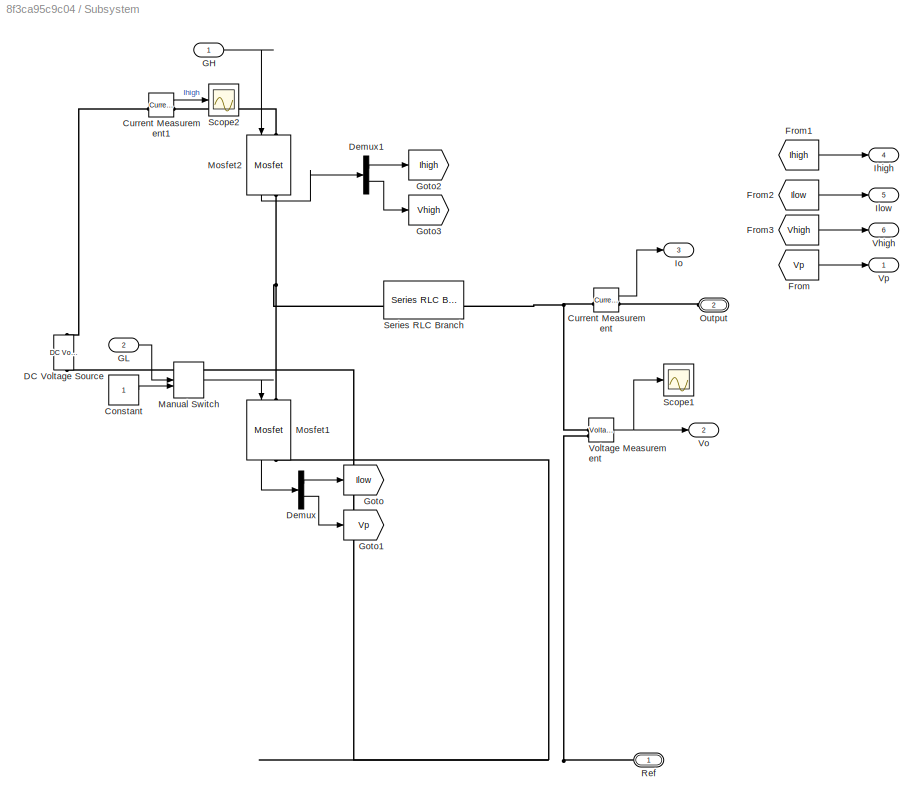
BLOCK [SubSystem] Subsystem
  NameLocation = top
BLOCK [Constant] Subsystem/Constant
BLOCK [Reference] Subsystem/Current Measurement  REF=spsCurrentMeasurementLib/Current Measurement
  LibrarySourceBlock = sps_lib/Sensors and Measurements/Current Measurement
  SourceBlock = spsCurrentMeasurementLib/Current Measurement
  SourceType = Current Measurement
  UserDataPersistent = on
BLOCK [Reference] Subsystem/Current Measurement1  REF=spsCurrentMeasurementLib/Current Measurement
  LibrarySourceBlock = sps_lib/Sensors and Measurements/Current Measurement
  SourceBlock = spsCurrentMeasurementLib/Current Measurement
  SourceType = Current Measurement
  UserDataPersistent = on
BLOCK [Reference] Subsystem/DC Voltage Source  REF=spsDCVoltageSourceLib/DC Voltage Source
  LibrarySourceBlock = sps_lib/Sources/DC Voltage Source
  SourceBlock = spsDCVoltageSourceLib/DC Voltage Source
  SourceType = DC Voltage Source
BLOCK [Demux] Subsystem/Demux
  Outputs = 2
BLOCK [Demux] Subsystem/Demux1
  Outputs = 2
BLOCK [From] Subsystem/From
  GotoTag = Vp
BLOCK [From] Subsystem/From1
  GotoTag = Ihigh
BLOCK [From] Subsystem/From2
  GotoTag = Ilow
BLOCK [From] Subsystem/From3
  GotoTag = Vhigh
BLOCK [Inport] Subsystem/GH
BLOCK [Inport] Subsystem/GL
  Port = 2
BLOCK [Goto] Subsystem/Goto
  GotoTag = Ilow
BLOCK [Goto] Subsystem/Goto1
  GotoTag = Vp
BLOCK [Goto] Subsystem/Goto2
  GotoTag = Ihigh
BLOCK [Goto] Subsystem/Goto3
  GotoTag = Vhigh
BLOCK [Outport] Subsystem/Ihigh
  Port = 4
BLOCK [Outport] Subsystem/Ilow
  Port = 5
BLOCK [Outport] Subsystem/Io
  Port = 3
BLOCK [ManualSwitch] Subsystem/Manual Switch
BLOCK [Reference] Subsystem/Mosfet1  REF=spsMosfetLib/Mosfet
  LibrarySourceBlock = sps_lib/Power Electronics/Mosfet
  NameLocation = left
  SourceBlock = spsMosfetLib/Mosfet
  SourceType = Mosfet
BLOCK [Reference] Subsystem/Mosfet2  REF=spsMosfetLib/Mosfet
  LibrarySourceBlock = sps_lib/Power Electronics/Mosfet
  NameLocation = left
  SourceBlock = spsMosfetLib/Mosfet
  SourceType = Mosfet
BLOCK [PMIOPort] Subsystem/Output
  NameLocation = top
  Port = 2
  Side = Left
BLOCK [PMIOPort] Subsystem/Ref
  NameLocation = top
  Side = Left
BLOCK [Scope] Subsystem/Scope1
  Floating = off
  NumInputPorts = 1
  ScopeSpecificationString = Simulink.scopes.TimeScopeBlockCfg('CurrentConfiguration', extmgr.ConfigurationSet(extmgr.Configuration('Core','General UI',true),extmgr.Configuration('Core','Source UI',true),extmgr.Configuration('Sources','WiredSimulink',true,'DataLoggingVariableName','ScopeData4'),extmgr.Configuration('Visuals','Time Domain',true,'SerializedDisplays',{struct('MinYLimReal','-1212.96499','MaxYLimReal','1719.40148'...<+1473ch>  <repeated x4 — deduplicated; at blocks: Scope1>
BLOCK [Scope] Subsystem/Scope2
  Floating = off
  NumInputPorts = 1
  ScopeSpecificationString = Simulink.scopes.TimeScopeBlockCfg('CurrentConfiguration', extmgr.ConfigurationSet(extmgr.Configuration('Core','General UI',true),extmgr.Configuration('Core','Source UI',true),extmgr.Configuration('Sources','WiredSimulink',true,'DataLoggingVariableName','ScopeData14'),extmgr.Configuration('Visuals','Time Domain',true,'SerializedDisplays',{struct('MinYLimReal','-49.06308','MaxYLimReal','441.57024','...<+1450ch>
BLOCK [Reference] Subsystem/Series RLC Branch  REF=spsSeriesRLCBranchLib/Series RLC Branch
  LibrarySourceBlock = sps_lib/Passives/Series RLC Branch
  SourceBlock = spsSeriesRLCBranchLib/Series RLC Branch
  SourceType = Series RLC Branch
BLOCK [Outport] Subsystem/Vhigh
  Port = 6
BLOCK [Outport] Subsystem/Vo
  Port = 2
BLOCK [Reference] Subsystem/Voltage Measurement  REF=spsVoltageMeasurementLib/Voltage Measurement
  LibrarySourceBlock = sps_lib/Sensors and Measurements/Voltage Measurement
  SourceBlock = spsVoltageMeasurementLib/Voltage Measurement
  SourceType = Voltage Measurement
  UserDataPersistent = on
BLOCK [Outport] Subsystem/Vp
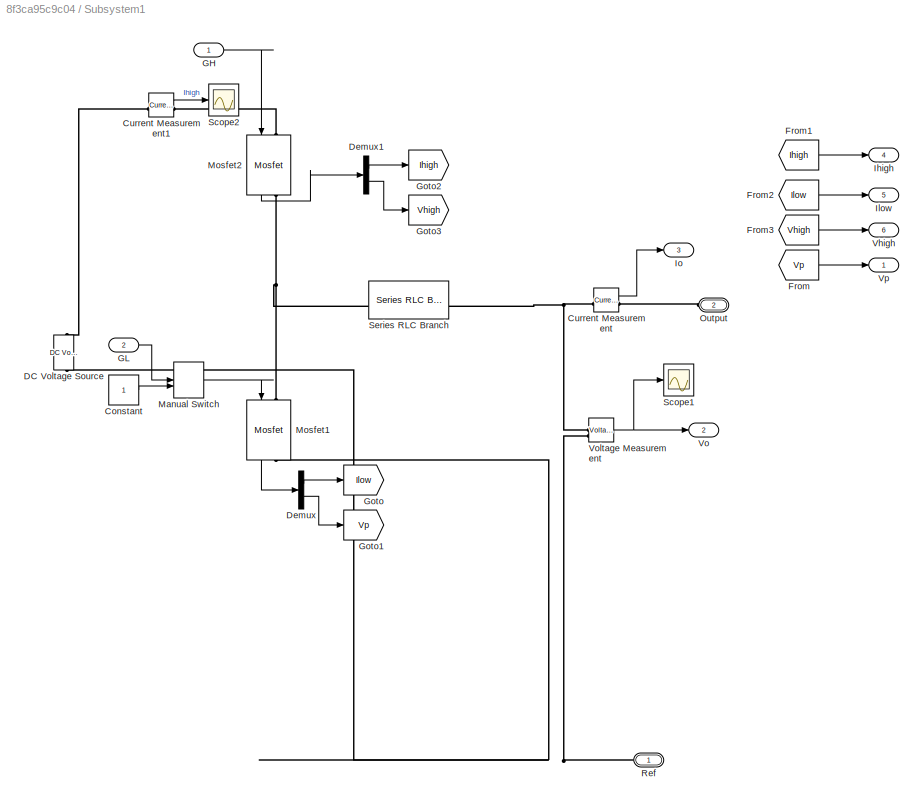
BLOCK [SubSystem] Subsystem1
  NameLocation = top
BLOCK [Constant] Subsystem1/Constant
BLOCK [Reference] Subsystem1/Current Measurement  REF=spsCurrentMeasurementLib/Current Measurement
  LibrarySourceBlock = sps_lib/Sensors and Measurements/Current Measurement
  SourceBlock = spsCurrentMeasurementLib/Current Measurement
  SourceType = Current Measurement
  UserDataPersistent = on
BLOCK [Reference] Subsystem1/Current Measurement1  REF=spsCurrentMeasurementLib/Current Measurement
  LibrarySourceBlock = sps_lib/Sensors and Measurements/Current Measurement
  SourceBlock = spsCurrentMeasurementLib/Current Measurement
  SourceType = Current Measurement
  UserDataPersistent = on
BLOCK [Reference] Subsystem1/DC Voltage Source  REF=spsDCVoltageSourceLib/DC Voltage Source
  LibrarySourceBlock = sps_lib/Sources/DC Voltage Source
  SourceBlock = spsDCVoltageSourceLib/DC Voltage Source
  SourceType = DC Voltage Source
BLOCK [Demux] Subsystem1/Demux
  Outputs = 2
BLOCK [Demux] Subsystem1/Demux1
  Outputs = 2
BLOCK [From] Subsystem1/From
  GotoTag = Vp
BLOCK [From] Subsystem1/From1
  GotoTag = Ihigh
BLOCK [From] Subsystem1/From2
  GotoTag = Ilow
BLOCK [From] Subsystem1/From3
  GotoTag = Vhigh
BLOCK [Inport] Subsystem1/GH
BLOCK [Inport] Subsystem1/GL
  Port = 2
BLOCK [Goto] Subsystem1/Goto
  GotoTag = Ilow
BLOCK [Goto] Subsystem1/Goto1
  GotoTag = Vp
BLOCK [Goto] Subsystem1/Goto2
  GotoTag = Ihigh
BLOCK [Goto] Subsystem1/Goto3
  GotoTag = Vhigh
BLOCK [Outport] Subsystem1/Ihigh
  Port = 4
BLOCK [Outport] Subsystem1/Ilow
  Port = 5
BLOCK [Outport] Subsystem1/Io
  Port = 3
BLOCK [ManualSwitch] Subsystem1/Manual Switch
BLOCK [Reference] Subsystem1/Mosfet1  REF=spsMosfetLib/Mosfet
  LibrarySourceBlock = sps_lib/Power Electronics/Mosfet
  NameLocation = left
  SourceBlock = spsMosfetLib/Mosfet
  SourceType = Mosfet
BLOCK [Reference] Subsystem1/Mosfet2  REF=spsMosfetLib/Mosfet
  LibrarySourceBlock = sps_lib/Power Electronics/Mosfet
  NameLocation = left
  SourceBlock = spsMosfetLib/Mosfet
  SourceType = Mosfet
BLOCK [PMIOPort] Subsystem1/Output
  NameLocation = top
  Port = 2
  Side = Left
BLOCK [PMIOPort] Subsystem1/Ref
  NameLocation = top
  Side = Left
BLOCK [Scope] Subsystem1/Scope1
  Floating = off
  NumInputPorts = 1
BLOCK [Scope] Subsystem1/Scope2
  Floating = off
  NumInputPorts = 1
  ScopeSpecificationString = Simulink.scopes.TimeScopeBlockCfg('CurrentConfiguration', extmgr.ConfigurationSet(extmgr.Configuration('Core','General UI',true),extmgr.Configuration('Core','Source UI',true),extmgr.Configuration('Sources','WiredSimulink',true,'DataLoggingVariableName','ScopeData14'),extmgr.Configuration('Visuals','Time Domain',true,'SerializedDisplays',{struct('MinYLimReal','-1445.73327','MaxYLimReal','7465.23105...<+1461ch>
BLOCK [Reference] Subsystem1/Series RLC Branch  REF=spsSeriesRLCBranchLib/Series RLC Branch
  LibrarySourceBlock = sps_lib/Passives/Series RLC Branch
  SourceBlock = spsSeriesRLCBranchLib/Series RLC Branch
  SourceType = Series RLC Branch
BLOCK [Outport] Subsystem1/Vhigh
  Port = 6
BLOCK [Outport] Subsystem1/Vo
  Port = 2
BLOCK [Reference] Subsystem1/Voltage Measurement  REF=spsVoltageMeasurementLib/Voltage Measurement
  LibrarySourceBlock = sps_lib/Sensors and Measurements/Voltage Measurement
  SourceBlock = spsVoltageMeasurementLib/Voltage Measurement
  SourceType = Voltage Measurement
  UserDataPersistent = on
BLOCK [Outport] Subsystem1/Vp
BLOCK [SubSystem] Subsystem2
  NameLocation = top
BLOCK [Constant] Subsystem2/Constant
BLOCK [Reference] Subsystem2/Current Measurement  REF=spsCurrentMeasurementLib/Current Measurement
  LibrarySourceBlock = sps_lib/Sensors and Measurements/Current Measurement
  SourceBlock = spsCurrentMeasurementLib/Current Measurement
  SourceType = Current Measurement
  UserDataPersistent = on
BLOCK [Reference] Subsystem2/Current Measurement1  REF=spsCurrentMeasurementLib/Current Measurement
  LibrarySourceBlock = sps_lib/Sensors and Measurements/Current Measurement
  SourceBlock = spsCurrentMeasurementLib/Current Measurement
  SourceType = Current Measurement
  UserDataPersistent = on
BLOCK [Reference] Subsystem2/DC Voltage Source  REF=spsDCVoltageSourceLib/DC Voltage Source
  LibrarySourceBlock = sps_lib/Sources/DC Voltage Source
  SourceBlock = spsDCVoltageSourceLib/DC Voltage Source
  SourceType = DC Voltage Source
BLOCK [Demux] Subsystem2/Demux
  Outputs = 2
BLOCK [Demux] Subsystem2/Demux1
  Outputs = 2
BLOCK [From] Subsystem2/From
  GotoTag = Vp
BLOCK [From] Subsystem2/From1
  GotoTag = Ihigh
BLOCK [From] Subsystem2/From2
  GotoTag = Ilow
BLOCK [From] Subsystem2/From3
  GotoTag = Vhigh
BLOCK [Inport] Subsystem2/GH
BLOCK [Inport] Subsystem2/GL
  Port = 2
BLOCK [Goto] Subsystem2/Goto
  GotoTag = Ilow
BLOCK [Goto] Subsystem2/Goto1
  GotoTag = Vp
BLOCK [Goto] Subsystem2/Goto2
  GotoTag = Ihigh
BLOCK [Goto] Subsystem2/Goto3
  GotoTag = Vhigh
BLOCK [Outport] Subsystem2/Ihigh
  Port = 4
BLOCK [Outport] Subsystem2/Ilow
  Port = 5
BLOCK [Outport] Subsystem2/Io
  Port = 3
BLOCK [ManualSwitch] Subsystem2/Manual Switch
BLOCK [Reference] Subsystem2/Mosfet1  REF=spsMosfetLib/Mosfet
  LibrarySourceBlock = sps_lib/Power Electronics/Mosfet
  NameLocation = left
  SourceBlock = spsMosfetLib/Mosfet
  SourceType = Mosfet
BLOCK [Reference] Subsystem2/Mosfet2  REF=spsMosfetLib/Mosfet
  LibrarySourceBlock = sps_lib/Power Electronics/Mosfet
  NameLocation = left
  SourceBlock = spsMosfetLib/Mosfet
  SourceType = Mosfet
BLOCK [PMIOPort] Subsystem2/Output
  NameLocation = top
  Port = 2
  Side = Left
BLOCK [PMIOPort] Subsystem2/Ref
  NameLocation = top
  Side = Left
BLOCK [Scope] Subsystem2/Scope1
  Floating = off
  NumInputPorts = 1
BLOCK [Scope] Subsystem2/Scope2
  Floating = off
  NumInputPorts = 1
  ScopeSpecificationString = Simulink.scopes.TimeScopeBlockCfg('CurrentConfiguration', extmgr.ConfigurationSet(extmgr.Configuration('Core','General UI',true),extmgr.Configuration('Core','Source UI',true),extmgr.Configuration('Sources','WiredSimulink',true,'DataLoggingVariableName','ScopeData14'),extmgr.Configuration('Visuals','Time Domain',true,'SerializedDisplays',{struct('MinYLimReal','-49.06308','MaxYLimReal','441.57024','...<+1450ch>
BLOCK [Reference] Subsystem2/Series RLC Branch  REF=spsSeriesRLCBranchLib/Series RLC Branch
  LibrarySourceBlock = sps_lib/Passives/Series RLC Branch
  SourceBlock = spsSeriesRLCBranchLib/Series RLC Branch
  SourceType = Series RLC Branch
BLOCK [Outport] Subsystem2/Vhigh
  Port = 6
BLOCK [Outport] Subsystem2/Vo
  Port = 2
BLOCK [Reference] Subsystem2/Voltage Measurement  REF=spsVoltageMeasurementLib/Voltage Measurement
  LibrarySourceBlock = sps_lib/Sensors and Measurements/Voltage Measurement
  SourceBlock = spsVoltageMeasurementLib/Voltage Measurement
  SourceType = Voltage Measurement
  UserDataPersistent = on
BLOCK [Outport] Subsystem2/Vp
BLOCK [SubSystem] Subsystem3
  NameLocation = top
BLOCK [Constant] Subsystem3/Constant
BLOCK [Reference] Subsystem3/Current Measurement  REF=spsCurrentMeasurementLib/Current Measurement
  LibrarySourceBlock = sps_lib/Sensors and Measurements/Current Measurement
  SourceBlock = spsCurrentMeasurementLib/Current Measurement
  SourceType = Current Measurement
  UserDataPersistent = on
BLOCK [Reference] Subsystem3/Current Measurement1  REF=spsCurrentMeasurementLib/Current Measurement
  LibrarySourceBlock = sps_lib/Sensors and Measurements/Current Measurement
  SourceBlock = spsCurrentMeasurementLib/Current Measurement
  SourceType = Current Measurement
  UserDataPersistent = on
BLOCK [Reference] Subsystem3/DC Voltage Source  REF=spsDCVoltageSourceLib/DC Voltage Source
  LibrarySourceBlock = sps_lib/Sources/DC Voltage Source
  SourceBlock = spsDCVoltageSourceLib/DC Voltage Source
  SourceType = DC Voltage Source
BLOCK [Demux] Subsystem3/Demux
  Outputs = 2
BLOCK [Demux] Subsystem3/Demux1
  Outputs = 2
BLOCK [From] Subsystem3/From
  GotoTag = Vp
BLOCK [From] Subsystem3/From1
  GotoTag = Ihigh
BLOCK [From] Subsystem3/From2
  GotoTag = Ilow
BLOCK [From] Subsystem3/From3
  GotoTag = Vhigh
BLOCK [Inport] Subsystem3/GH
BLOCK [Inport] Subsystem3/GL
  Port = 2
BLOCK [Goto] Subsystem3/Goto
  GotoTag = Ilow
BLOCK [Goto] Subsystem3/Goto1
  GotoTag = Vp
BLOCK [Goto] Subsystem3/Goto2
  GotoTag = Ihigh
BLOCK [Goto] Subsystem3/Goto3
  GotoTag = Vhigh
BLOCK [Outport] Subsystem3/Ihigh
  Port = 4
BLOCK [Outport] Subsystem3/Ilow
  Port = 5
BLOCK [Outport] Subsystem3/Io
  Port = 3
BLOCK [ManualSwitch] Subsystem3/Manual Switch
BLOCK [Reference] Subsystem3/Mosfet1  REF=spsMosfetLib/Mosfet
  LibrarySourceBlock = sps_lib/Power Electronics/Mosfet
  NameLocation = left
  SourceBlock = spsMosfetLib/Mosfet
  SourceType = Mosfet
BLOCK [Reference] Subsystem3/Mosfet2  REF=spsMosfetLib/Mosfet
  LibrarySourceBlock = sps_lib/Power Electronics/Mosfet
  NameLocation = left
  SourceBlock = spsMosfetLib/Mosfet
  SourceType = Mosfet
BLOCK [PMIOPort] Subsystem3/Output
  NameLocation = top
  Port = 2
  Side = Left
BLOCK [PMIOPort] Subsystem3/Ref
  NameLocation = top
  Side = Left
BLOCK [Scope] Subsystem3/Scope1
  Floating = off
  NumInputPorts = 1
BLOCK [Scope] Subsystem3/Scope2
  Floating = off
  NumInputPorts = 1
  ScopeSpecificationString = Simulink.scopes.TimeScopeBlockCfg('CurrentConfiguration', extmgr.ConfigurationSet(extmgr.Configuration('Core','General UI',true),extmgr.Configuration('Core','Source UI',true),extmgr.Configuration('Sources','WiredSimulink',true,'DataLoggingVariableName','ScopeData14'),extmgr.Configuration('Visuals','Time Domain',true,'SerializedDisplays',{struct('MinYLimReal','-1445.73327','MaxYLimReal','7465.23105...<+1461ch>
BLOCK [Reference] Subsystem3/Series RLC Branch  REF=spsSeriesRLCBranchLib/Series RLC Branch
  LibrarySourceBlock = sps_lib/Passives/Series RLC Branch
  SourceBlock = spsSeriesRLCBranchLib/Series RLC Branch
  SourceType = Series RLC Branch
BLOCK [Outport] Subsystem3/Vhigh
  Port = 6
BLOCK [Outport] Subsystem3/Vo
  Port = 2
BLOCK [Reference] Subsystem3/Voltage Measurement  REF=spsVoltageMeasurementLib/Voltage Measurement
  LibrarySourceBlock = sps_lib/Sensors and Measurements/Voltage Measurement
  SourceBlock = spsVoltageMeasurementLib/Voltage Measurement
  SourceType = Voltage Measurement
  UserDataPersistent = on
BLOCK [Outport] Subsystem3/Vp
BLOCK [Sum] Sum
  Inputs = |+-
BLOCK [Sum] Sum1
  Inputs = |+-
BLOCK [Sum] Sum2
  Inputs = |+-
BLOCK [Sum] Sum3
  Inputs = |+-
BLOCK [Switch] Switch1
  Criteria = u2 > Threshold
  InputSameDT = off
  SaturateOnIntegerOverflow = off
BLOCK [Switch] Switch10
  Criteria = u2 > Threshold
  InputSameDT = off
  SaturateOnIntegerOverflow = off
BLOCK [Switch] Switch11
  Criteria = u2 > Threshold
  InputSameDT = off
  NameLocation = top
  SaturateOnIntegerOverflow = off
BLOCK [Switch] Switch12
  Criteria = u2 > Threshold
  InputSameDT = off
  SaturateOnIntegerOverflow = off
BLOCK [Switch] Switch13
  Criteria = u2 > Threshold
  InputSameDT = off
  SaturateOnIntegerOverflow = off
BLOCK [Switch] Switch14
  Criteria = u2 > Threshold
  InputSameDT = off
  NameLocation = top
  SaturateOnIntegerOverflow = off
BLOCK [Switch] Switch15
  Criteria = u2 > Threshold
  InputSameDT = off
  NameLocation = top
  SaturateOnIntegerOverflow = off
BLOCK [Switch] Switch16
  Criteria = u2 > Threshold
  InputSameDT = off
  SaturateOnIntegerOverflow = off
BLOCK [Switch] Switch17
  Criteria = u2 > Threshold
  InputSameDT = off
  SaturateOnIntegerOverflow = off
BLOCK [Switch] Switch18
  Criteria = u2 > Threshold
  InputSameDT = off
  SaturateOnIntegerOverflow = off
BLOCK [Switch] Switch19
  Criteria = u2 > Threshold
  InputSameDT = off
  SaturateOnIntegerOverflow = off
BLOCK [Switch] Switch2
  Criteria = u2 > Threshold
  InputSameDT = off
  SaturateOnIntegerOverflow = off
BLOCK [Switch] Switch20
  Criteria = u2 > Threshold
  InputSameDT = off
  SaturateOnIntegerOverflow = off
BLOCK [Switch] Switch22
  Criteria = u2 > Threshold
  InputSameDT = off
  NameLocation = top
  SaturateOnIntegerOverflow = off
BLOCK [Switch] Switch23
  Criteria = u2 > Threshold
  InputSameDT = off
  NameLocation = top
  SaturateOnIntegerOverflow = off
BLOCK [Switch] Switch24
  Criteria = u2 > Threshold
  InputSameDT = off
  NameLocation = top
  SaturateOnIntegerOverflow = off
BLOCK [Switch] Switch25
  Criteria = u2 > Threshold
  InputSameDT = off
  SaturateOnIntegerOverflow = off
BLOCK [Switch] Switch3
  Criteria = u2 > Threshold
  InputSameDT = off
  SaturateOnIntegerOverflow = off
BLOCK [Switch] Switch4
  Criteria = u2 > Threshold
  InputSameDT = off
  SaturateOnIntegerOverflow = off
BLOCK [Switch] Switch5
  Criteria = u2 > Threshold
  InputSameDT = off
  SaturateOnIntegerOverflow = off
BLOCK [Switch] Switch6
  Criteria = u2 > Threshold
  InputSameDT = off
  SaturateOnIntegerOverflow = off
BLOCK [Switch] Switch7
  Criteria = u2 > Threshold
  InputSameDT = off
  NameLocation = top
  SaturateOnIntegerOverflow = off
BLOCK [Switch] Switch8
  Criteria = u2 > Threshold
  InputSameDT = off
  NameLocation = top
  SaturateOnIntegerOverflow = off
BLOCK [Switch] Switch9
  Criteria = u2 > Threshold
  InputSameDT = off
  SaturateOnIntegerOverflow = off
BLOCK [ToWorkspace] To Workspace
  FixptAsFi = on
  MaxDataPoints = inf
  SampleTime = -1
  SaveFormat = Timeseries
  VariableName = Io
BLOCK [ToWorkspace] To Workspace1
  FixptAsFi = on
  MaxDataPoints = inf
  SampleTime = -1
  SaveFormat = Timeseries
  VariableName = IL
BLOCK [ToWorkspace] To Workspace2
  FixptAsFi = on
  MaxDataPoints = inf
  SampleTime = -1
  SaveFormat = Timeseries
  VariableName = IH
BLOCK [ToWorkspace] To Workspace3
  FixptAsFi = on
  MaxDataPoints = inf
  SampleTime = -1
  SaveFormat = Timeseries
  VariableName = Control
BLOCK [SubSystem] Triggered Subsystem
  TreatAsAtomicUnit = on
BLOCK [Outport] Triggered Subsystem/Enable
  Port = 2
BLOCK [SubSystem] Triggered Subsystem/MATLAB Function
  ErrorFcn = Stateflow.Translate.translate
  PermitHierarchicalResolution = ExplicitOnly
  SFBlockType = MATLAB Function
  TreatAsAtomicUnit = on
BLOCK [Demux] Triggered Subsystem/MATLAB Function/ Demux 
  Outputs = 1
BLOCK [S-Function] Triggered Subsystem/MATLAB Function/ SFunction 
  EnableBusSupport = on
  FunctionName = sf_sfun
  PortCounts = [4 3]
  SFcnIsStateOwnerBlock = off
  SFunctionDeploymentMode = off
  Tag = Stateflow S-Function 1
BLOCK [Terminator] Triggered Subsystem/MATLAB Function/ Terminator 
BLOCK [Inport] Triggered Subsystem/MATLAB Function/current
BLOCK [Outport] Triggered Subsystem/MATLAB Function/current_peak
BLOCK [Outport] Triggered Subsystem/MATLAB Function/enable
  Port = 2
BLOCK [Inport] Triggered Subsystem/MATLAB Function/enable_delay
  Port = 3
BLOCK [Inport] Triggered Subsystem/MATLAB Function/max
  Port = 4
BLOCK [Inport] Triggered Subsystem/MATLAB Function/peak
  Port = 2
BLOCK [Scope] Triggered Subsystem/Scope
  Floating = off
  NumInputPorts = 1
  ScopeSpecificationString = Simulink.scopes.TimeScopeBlockCfg('CurrentConfiguration', extmgr.ConfigurationSet(extmgr.Configuration('Core','General UI',true),extmgr.Configuration('Core','Source UI',true),extmgr.Configuration('Sources','WiredSimulink',true,'DataLoggingVariableName','ScopeData5'),extmgr.Configuration('Visuals','Time Domain',true,'SerializedDisplays',{struct('MinYLimReal','-0.125','MaxYLimReal','1.125','YLabelRe...<+1417ch>
BLOCK [TriggerPort] Triggered Subsystem/Trigger
  StatesWhenEnabling = held
  TriggerType = either
  VariantControl = (inherit)
BLOCK [UnitDelay] Triggered Subsystem/Unit Delay
  HasFrameUpgradeWarning = on
  NameLocation = top
  SampleTime = -1
BLOCK [UnitDelay] Triggered Subsystem/Unit Delay1
  HasFrameUpgradeWarning = on
  NameLocation = top
  SampleTime = -1
BLOCK [Inport] Triggered Subsystem/current
BLOCK [Outport] Triggered Subsystem/current_peak
BLOCK [Inport] Triggered Subsystem/max
  Port = 2
BLOCK [Reference] Voltage Measurement1  REF=spsVoltageMeasurementLib/Voltage Measurement
  LibrarySourceBlock = sps_lib/Sensors and Measurements/Voltage Measurement
  SourceBlock = spsVoltageMeasurementLib/Voltage Measurement
  SourceType = Voltage Measurement
  UserDataPersistent = on
BLOCK [Reference] Voltage Measurement2  REF=spsVoltageMeasurementLib/Voltage Measurement
  LibrarySourceBlock = sps_lib/Sensors and Measurements/Voltage Measurement
  SourceBlock = spsVoltageMeasurementLib/Voltage Measurement
  SourceType = Voltage Measurement
  UserDataPersistent = on
BLOCK [Reference] powergui  REF=sps_lib/powergui
  LibrarySourceBlock = sps_lib/powergui
  Priority = 1
  SourceBlock = sps_lib/powergui
  SourceType = PSB option menu block
LINE AND1:1 -> AND:2
NET AND:1 -> Goto16:1, Scope21:1, To Workspace3:1
LINE Constant12:1 -> Switch7:1
LINE Constant13:1 -> Switch8:1
LINE Constant14:1 -> Switch8:3
NET Constant16:1 -> Switch11:2, Switch22:2
NET Constant17:1 -> Switch23:2, Switch24:2
NET Constant18:1 -> Switch14:2, Switch15:2
LINE Constant19:1 -> Switch16:3
LINE Constant1:1 -> Switch3:3
LINE Constant20:1 -> Switch19:1
LINE Constant21:1 -> Switch18:3
NET Constant2:1 -> Switch1:3, Switch25:3, Switch6:3, Switch9:3
LINE Constant3:1 -> Switch12:3
LINE Constant4:1 -> Switch7:3
LINE Constant5:1 -> Switch13:3
LINE Constant6:1 -> Switch17:3
LINE Constant7:1 -> Switch20:3
LINE Constant8:1 -> Switch4:3
LINE Constant9:1 -> Switch5:3
LINE Constant:1 -> Switch2:3
NET Current Measurement2:1 -> Goto6:1, Scope11:1
LINE Current Measurement:1 -> Goto:1
LINE DC Gen/DC Machine1:1 -> DC Gen/Demux:1
LINE DC Gen/Demux:1 -> DC Gen/Rad//s:1
LINE DC Gen/Demux:2 -> DC Gen/Ia:1
LINE DC Gen/Demux:3 -> DC Gen/If:1
LINE DC Gen/Demux:4 -> DC Gen/Te:1
LINE DC Gen/Vf:1 -> DC Gen/Controlled Voltage Source1:1
LINE DC Gen/Voltage Measurement2:1 -> DC Gen/Va:1
LINE DC Gen1/DC Machine1:1 -> DC Gen1/Demux:1
LINE DC Gen1/Demux:1 -> DC Gen1/Rad//s:1
LINE DC Gen1/Demux:2 -> DC Gen1/Ia:1
LINE DC Gen1/Demux:3 -> DC Gen1/If:1
LINE DC Gen1/Demux:4 -> DC Gen1/Te:1
LINE DC Gen1/Vf:1 -> DC Gen1/Controlled Voltage Source1:1
LINE DC Gen1/Voltage Measurement2:1 -> DC Gen1/Va:1
LINE DC Gen:1 -> Goto2:1
LINE DC Gen:2 -> Goto13:1
LINE DC Gen:3 -> Goto3:1
LINE Feedback controller3/Fcn:1 -> Feedback controller3/Duty:1
LINE Feedback controller3/Gain2:1 -> Feedback controller3/Sum2:2
LINE Feedback controller3/Gain3:1 -> Feedback controller3/Sum1:2
LINE Feedback controller3/Gain:1 -> Feedback controller3/Sum1:1
LINE Feedback controller3/Integrator:1 -> Feedback controller3/Gain3:1
LINE Feedback controller3/Manual Switch:1 -> Feedback controller3/Fcn:1
NET Feedback controller3/Sat:1 -> Feedback controller3/Manual Switch:1, Feedback controller3/Scope2:1, Feedback controller3/Sum3:1
NET Feedback controller3/Sum1:1 -> Feedback controller3/Sat:1, Feedback controller3/Scope7:1, Feedback controller3/Sum3:2
LINE Feedback controller3/Sum2:1 -> Feedback controller3/Integrator:1
NET Feedback controller3/Sum3:1 -> Feedback controller3/Gain2:1, Feedback controller3/Scope5:1
NET Feedback controller3/Sum:1 -> Feedback controller3/Gain:1, Feedback controller3/Scope1:1, Feedback controller3/Sum2:1
LINE Feedback controller3/r:1 -> Feedback controller3/Sum:2
LINE Feedback controller3/y:1 -> Feedback controller3/Sum:1
LINE Feedback controller3:1 -> Goto15:1
LINE Feedback controller5/Subsystem1/Gain2:1 -> Feedback controller5/Subsystem1/Sum2:2
LINE Feedback controller5/Subsystem1/Gain3:1 -> Feedback controller5/Subsystem1/Sum1:2
LINE Feedback controller5/Subsystem1/Gain:1 -> Feedback controller5/Subsystem1/Sum1:1
LINE Feedback controller5/Subsystem1/Integrator:1 -> Feedback controller5/Subsystem1/Gain3:1
LINE Feedback controller5/Subsystem1/Sat1:1 -> Feedback controller5/Subsystem1/Output:1
NET Feedback controller5/Subsystem1/Sat:1 -> Feedback controller5/Subsystem1/Sum3:1, Feedback controller5/Subsystem1/Sum:1
NET Feedback controller5/Subsystem1/Sum1:1 -> Feedback controller5/Subsystem1/Sat:1, Feedback controller5/Subsystem1/Sum3:2
NET Feedback controller5/Subsystem1/Sum2:1 -> Feedback controller5/Subsystem1/Gain:1, Feedback controller5/Subsystem1/Integrator:1
LINE Feedback controller5/Subsystem1/Sum3:1 -> Feedback controller5/Subsystem1/Gain2:1
LINE Feedback controller5/Subsystem1/Sum:1 -> Feedback controller5/Subsystem1/Sat1:1
LINE Feedback controller5/Subsystem1/duty:1 -> Feedback controller5/Subsystem1/Sum:2
LINE Feedback controller5/Subsystem1/eo2:1 -> Feedback controller5/Subsystem1/Sum2:1
NET Feedback controller5/Subsystem1:1 -> Feedback controller5/Scope2:2, Feedback controller5/Subsystem6:1
LINE Feedback controller5/Subsystem2/Gain2:1 -> Feedback controller5/Subsystem2/Sum2:2
LINE Feedback controller5/Subsystem2/Gain3:1 -> Feedback controller5/Subsystem2/Sum1:2
LINE Feedback controller5/Subsystem2/Gain:1 -> Feedback controller5/Subsystem2/Sum1:1
LINE Feedback controller5/Subsystem2/Integrator:1 -> Feedback controller5/Subsystem2/Gain3:1
LINE Feedback controller5/Subsystem2/Sat1:1 -> Feedback controller5/Subsystem2/Output:1
NET Feedback controller5/Subsystem2/Sat:1 -> Feedback controller5/Subsystem2/Scope:1, Feedback controller5/Subsystem2/Sum3:1, Feedback controller5/Subsystem2/Sum:1
NET Feedback controller5/Subsystem2/Sum1:1 -> Feedback controller5/Subsystem2/Sat:1, Feedback controller5/Subsystem2/Sum3:2
NET Feedback controller5/Subsystem2/Sum2:1 -> Feedback controller5/Subsystem2/Gain:1, Feedback controller5/Subsystem2/Integrator:1
LINE Feedback controller5/Subsystem2/Sum3:1 -> Feedback controller5/Subsystem2/Gain2:1
LINE Feedback controller5/Subsystem2/Sum:1 -> Feedback controller5/Subsystem2/Sat1:1
LINE Feedback controller5/Subsystem2/duty:1 -> Feedback controller5/Subsystem2/Sum:2
LINE Feedback controller5/Subsystem2/eo2:1 -> Feedback controller5/Subsystem2/Sum2:1
NET Feedback controller5/Subsystem2:1 -> Feedback controller5/Scope2:1, Feedback controller5/Subsystem4:1
LINE Feedback controller5/Subsystem3/Gain2:1 -> Feedback controller5/Subsystem3/Sum2:2
LINE Feedback controller5/Subsystem3/Gain3:1 -> Feedback controller5/Subsystem3/Sum1:2
LINE Feedback controller5/Subsystem3/Gain:1 -> Feedback controller5/Subsystem3/Sum1:1
LINE Feedback controller5/Subsystem3/Integrator:1 -> Feedback controller5/Subsystem3/Gain3:1
LINE Feedback controller5/Subsystem3/Sat1:1 -> Feedback controller5/Subsystem3/Output:1
NET Feedback controller5/Subsystem3/Sat:1 -> Feedback controller5/Subsystem3/Sum3:1, Feedback controller5/Subsystem3/Sum:1
NET Feedback controller5/Subsystem3/Sum1:1 -> Feedback controller5/Subsystem3/Sat:1, Feedback controller5/Subsystem3/Sum3:2
NET Feedback controller5/Subsystem3/Sum2:1 -> Feedback controller5/Subsystem3/Gain:1, Feedback controller5/Subsystem3/Integrator:1
LINE Feedback controller5/Subsystem3/Sum3:1 -> Feedback controller5/Subsystem3/Gain2:1
LINE Feedback controller5/Subsystem3/Sum:1 -> Feedback controller5/Subsystem3/Sat1:1
LINE Feedback controller5/Subsystem3/duty:1 -> Feedback controller5/Subsystem3/Sum:2
LINE Feedback controller5/Subsystem3/eo2:1 -> Feedback controller5/Subsystem3/Sum2:1
LINE Feedback controller5/Subsystem3:1 -> Feedback controller5/Subsystem7:1
NET Feedback controller5/Subsystem4/AND:1 -> Feedback controller5/Subsystem4/PWMH1:1, Feedback controller5/Subsystem4/Scope:1
NET Feedback controller5/Subsystem4/Delay1:1 -> Feedback controller5/Subsystem4/AND:2, Feedback controller5/Subsystem4/NOR:1
NET Feedback controller5/Subsystem4/Fcn:1 -> Feedback controller5/Subsystem4/Relational Operator:1, Feedback controller5/Subsystem4/Scope3:1
LINE Feedback controller5/Subsystem4/Input:1 -> Feedback controller5/Subsystem4/Fcn:1
NET Feedback controller5/Subsystem4/NOR:1 -> Feedback controller5/Subsystem4/PWML1:1, Feedback controller5/Subsystem4/Scope:2
NET Feedback controller5/Subsystem4/Relational Operator:1 -> Feedback controller5/Subsystem4/AND:1, Feedback controller5/Subsystem4/Delay1:1, Feedback controller5/Subsystem4/NOR:2
NET Feedback controller5/Subsystem4/Triangle Generator:1 -> Feedback controller5/Subsystem4/Relational Operator:2, Feedback controller5/Subsystem4/Scope6:1
LINE Feedback controller5/Subsystem4:1 -> Feedback controller5/PWMH1:1
LINE Feedback controller5/Subsystem4:2 -> Feedback controller5/PWML1:1
LINE Feedback controller5/Subsystem5/Gain2:1 -> Feedback controller5/Subsystem5/Sum2:2
LINE Feedback controller5/Subsystem5/Gain3:1 -> Feedback controller5/Subsystem5/Sum1:2
LINE Feedback controller5/Subsystem5/Gain:1 -> Feedback controller5/Subsystem5/Sum1:1
LINE Feedback controller5/Subsystem5/Integrator:1 -> Feedback controller5/Subsystem5/Gain3:1
LINE Feedback controller5/Subsystem5/Sat1:1 -> Feedback controller5/Subsystem5/Output:1
NET Feedback controller5/Subsystem5/Sat:1 -> Feedback controller5/Subsystem5/Sum3:1, Feedback controller5/Subsystem5/Sum:1
NET Feedback controller5/Subsystem5/Sum1:1 -> Feedback controller5/Subsystem5/Sat:1, Feedback controller5/Subsystem5/Sum3:2
NET Feedback controller5/Subsystem5/Sum2:1 -> Feedback controller5/Subsystem5/Gain:1, Feedback controller5/Subsystem5/Integrator:1
LINE Feedback controller5/Subsystem5/Sum3:1 -> Feedback controller5/Subsystem5/Gain2:1
LINE Feedback controller5/Subsystem5/Sum:1 -> Feedback controller5/Subsystem5/Sat1:1
LINE Feedback controller5/Subsystem5/duty:1 -> Feedback controller5/Subsystem5/Sum:2
LINE Feedback controller5/Subsystem5/eo2:1 -> Feedback controller5/Subsystem5/Sum2:1
LINE Feedback controller5/Subsystem5:1 -> Feedback controller5/Subsystem8:1
NET Feedback controller5/Subsystem6/AND:1 -> Feedback controller5/Subsystem6/PWMH1:1, Feedback controller5/Subsystem6/Scope:1
NET Feedback controller5/Subsystem6/Delay1:1 -> Feedback controller5/Subsystem6/AND:2, Feedback controller5/Subsystem6/NOR:1
NET Feedback controller5/Subsystem6/Fcn:1 -> Feedback controller5/Subsystem6/Relational Operator:1, Feedback controller5/Subsystem6/Scope3:1
LINE Feedback controller5/Subsystem6/Input:1 -> Feedback controller5/Subsystem6/Fcn:1
NET Feedback controller5/Subsystem6/NOR:1 -> Feedback controller5/Subsystem6/PWML1:1, Feedback controller5/Subsystem6/Scope:2
NET Feedback controller5/Subsystem6/Relational Operator:1 -> Feedback controller5/Subsystem6/AND:1, Feedback controller5/Subsystem6/Delay1:1, Feedback controller5/Subsystem6/NOR:2
NET Feedback controller5/Subsystem6/Triangle Generator:1 -> Feedback controller5/Subsystem6/Relational Operator:2, Feedback controller5/Subsystem6/Scope6:1
LINE Feedback controller5/Subsystem6:1 -> Feedback controller5/PWMH2:1
LINE Feedback controller5/Subsystem6:2 -> Feedback controller5/PWML2:1
NET Feedback controller5/Subsystem7/AND:1 -> Feedback controller5/Subsystem7/PWMH1:1, Feedback controller5/Subsystem7/Scope:1
NET Feedback controller5/Subsystem7/Delay1:1 -> Feedback controller5/Subsystem7/AND:2, Feedback controller5/Subsystem7/NOR:1
NET Feedback controller5/Subsystem7/Fcn:1 -> Feedback controller5/Subsystem7/Relational Operator:1, Feedback controller5/Subsystem7/Scope3:1
LINE Feedback controller5/Subsystem7/Input:1 -> Feedback controller5/Subsystem7/Fcn:1
NET Feedback controller5/Subsystem7/NOR:1 -> Feedback controller5/Subsystem7/PWML1:1, Feedback controller5/Subsystem7/Scope:2
NET Feedback controller5/Subsystem7/Relational Operator:1 -> Feedback controller5/Subsystem7/AND:1, Feedback controller5/Subsystem7/Delay1:1, Feedback controller5/Subsystem7/NOR:2
NET Feedback controller5/Subsystem7/Triangle Generator:1 -> Feedback controller5/Subsystem7/Relational Operator:2, Feedback controller5/Subsystem7/Scope6:1
LINE Feedback controller5/Subsystem7:1 -> Feedback controller5/PWMH3:1
LINE Feedback controller5/Subsystem7:2 -> Feedback controller5/PWML3:1
NET Feedback controller5/Subsystem8/AND:1 -> Feedback controller5/Subsystem8/PWMH1:1, Feedback controller5/Subsystem8/Scope:1
NET Feedback controller5/Subsystem8/Delay1:1 -> Feedback controller5/Subsystem8/AND:2, Feedback controller5/Subsystem8/NOR:1
NET Feedback controller5/Subsystem8/Fcn:1 -> Feedback controller5/Subsystem8/Relational Operator:1, Feedback controller5/Subsystem8/Scope3:1
LINE Feedback controller5/Subsystem8/Input:1 -> Feedback controller5/Subsystem8/Fcn:1
NET Feedback controller5/Subsystem8/NOR:1 -> Feedback controller5/Subsystem8/PWML1:1, Feedback controller5/Subsystem8/Scope:2
NET Feedback controller5/Subsystem8/Relational Operator:1 -> Feedback controller5/Subsystem8/AND:1, Feedback controller5/Subsystem8/Delay1:1, Feedback controller5/Subsystem8/NOR:2
NET Feedback controller5/Subsystem8/Triangle Generator:1 -> Feedback controller5/Subsystem8/Relational Operator:2, Feedback controller5/Subsystem8/Scope6:1
LINE Feedback controller5/Subsystem8:1 -> Feedback controller5/PWMH4:1
LINE Feedback controller5/Subsystem8:2 -> Feedback controller5/PWML4:1
NET Feedback controller5/duty1:1 -> Feedback controller5/Subsystem1:2, Feedback controller5/Subsystem2:2, Feedback controller5/Subsystem3:2, Feedback controller5/Subsystem5:2
LINE Feedback controller5/eo1:1 -> Feedback controller5/Subsystem2:1
LINE Feedback controller5/eo2:1 -> Feedback controller5/Subsystem1:1
LINE Feedback controller5/eo3:1 -> Feedback controller5/Subsystem3:1
LINE Feedback controller5/eo4:1 -> Feedback controller5/Subsystem5:1
LINE Feedback controller5:1 -> Goto8:1
LINE Feedback controller5:2 -> Goto30:1
LINE Feedback controller5:3 -> Goto18:1
LINE Feedback controller5:4 -> Goto26:1
LINE Feedback controller5:5 -> Goto21:1
LINE Feedback controller5:6 -> Goto27:1
LINE Feedback controller5:7 -> Goto24:1
LINE Feedback controller5:8 -> Goto29:1
LINE From10:1 -> Ideal Switch1:1
LINE From11:1 -> Scope7:1
NET From12:1 -> Switch12:2, Switch13:2, Switch17:2, Switch20:2, Switch2:2, Switch3:2, Switch4:2, Switch5:2
LINE From13:1 -> Scope2:2
LINE From14:1 -> Subsystem:1
LINE From15:1 -> Subsystem:2
LINE From16:1 -> Scope8:1
LINE From17:1 -> Scope9:1
LINE From18:1 -> Mux:1
LINE From19:1 -> Sum1:2
LINE From1:1 -> Gain:1
LINE From20:1 -> Sum2:2
LINE From21:1 -> Sum3:2
LINE From22:1 -> Gain1:1
LINE From23:1 -> Switch2:1
LINE From24:1 -> Switch11:3
LINE From25:1 -> Switch14:3
LINE From26:1 -> Switch3:1
LINE From27:1 -> Switch5:1
LINE From28:1 -> Switch22:3
LINE From29:1 -> Switch4:1
NET From2:1 -> Scope2:1, To Workspace:1
LINE From30:1 -> Switch11:1
LINE From31:1 -> Switch15:3
LINE From32:1 -> Mux:2
NET From33:1 -> Scope13:1, To Workspace2:1
LINE From34:1 -> Scope13:2
LINE From35:1 -> Switch7:2
LINE From36:1 -> Switch8:2
NET From37:1 -> Switch10:2, Switch1:2, Switch25:2, Switch6:2, Switch9:2
LINE From38:1 -> Switch10:1
LINE From39:1 -> Switch14:1
LINE From3:1 -> Scope3:1
LINE From40:1 -> Switch13:1
LINE From41:1 -> Switch12:1
LINE From42:1 -> Scope17:1
LINE From43:1 -> Gain5:1
LINE From44:1 -> Relational Operator1:1
LINE From45:1 -> Switch20:1
LINE From46:1 -> Switch17:1
LINE From47:1 -> Switch15:1
LINE From48:1 -> Switch16:1
LINE From49:1 -> Switch16:2
LINE From4:1 -> Triggered Subsystem:1
LINE From50:1 -> Mux:3
LINE From51:1 -> Switch18:1
LINE From52:1 -> Mux:4
LINE From53:1 -> Switch18:2
LINE From55:1 -> Scope4:2
LINE From56:1 -> Scope4:3
LINE From5:1 -> Sum:2
LINE From64:1 -> AND:1
LINE From65:1 -> Switch22:1
LINE From66:1 -> Switch23:3
LINE From67:1 -> Switch24:3
LINE From68:1 -> Switch23:1
LINE From69:1 -> Switch24:1
LINE From6:1 -> Scope4:1
NET From7:1 -> Gain3:1, Scope5:1
LINE From8:1 -> Scope6:1
LINE From9:1 -> Scope6:2
LINE From:1 -> Scope:1
NET Gain1:1 -> Sum1:1, Sum2:1, Sum3:1, Sum:1
LINE Gain2:1 -> Switch19:3
LINE Gain3:1 -> Scope17:2
LINE Gain5:1 -> Relational Operator1:2
LINE Gain:1 -> Scope1:1
NET Mux:1 -> Scope10:1, To Workspace1:1
LINE Pulse Generator:1 -> Triggered Subsystem:trigger
LINE Relational Operator1:1 -> AND1:1
NET Step2:1 -> Goto14:1, Switch19:2
NET Step3:1 -> Goto5:1, Ideal Switch2:1
LINE Subsystem/Constant:1 -> Subsystem/Manual Switch:2
LINE Subsystem/Current Measurement1:1 -> Subsystem/Scope2:1
LINE Subsystem/Current Measurement:1 -> Subsystem/Io:1
LINE Subsystem/Demux1:1 -> Subsystem/Goto2:1
LINE Subsystem/Demux1:2 -> Subsystem/Goto3:1
LINE Subsystem/Demux:1 -> Subsystem/Goto:1
LINE Subsystem/Demux:2 -> Subsystem/Goto1:1
LINE Subsystem/From1:1 -> Subsystem/Ihigh:1
LINE Subsystem/From2:1 -> Subsystem/Ilow:1
LINE Subsystem/From3:1 -> Subsystem/Vhigh:1
LINE Subsystem/From:1 -> Subsystem/Vp:1
LINE Subsystem/GH:1 -> Subsystem/Mosfet2:1
LINE Subsystem/GL:1 -> Subsystem/Manual Switch:1
LINE Subsystem/Manual Switch:1 -> Subsystem/Mosfet1:1
LINE Subsystem/Mosfet1:1 -> Subsystem/Demux:1
LINE Subsystem/Mosfet2:1 -> Subsystem/Demux1:1
NET Subsystem/Voltage Measurement:1 -> Subsystem/Scope1:1, Subsystem/Vo:1
LINE Subsystem1/Constant:1 -> Subsystem1/Manual Switch:2
LINE Subsystem1/Current Measurement1:1 -> Subsystem1/Scope2:1
LINE Subsystem1/Current Measurement:1 -> Subsystem1/Io:1
LINE Subsystem1/Demux1:1 -> Subsystem1/Goto2:1
LINE Subsystem1/Demux1:2 -> Subsystem1/Goto3:1
LINE Subsystem1/Demux:1 -> Subsystem1/Goto:1
LINE Subsystem1/Demux:2 -> Subsystem1/Goto1:1
LINE Subsystem1/From1:1 -> Subsystem1/Ihigh:1
LINE Subsystem1/From2:1 -> Subsystem1/Ilow:1
LINE Subsystem1/From3:1 -> Subsystem1/Vhigh:1
LINE Subsystem1/From:1 -> Subsystem1/Vp:1
LINE Subsystem1/GH:1 -> Subsystem1/Mosfet2:1
LINE Subsystem1/GL:1 -> Subsystem1/Manual Switch:1
LINE Subsystem1/Manual Switch:1 -> Subsystem1/Mosfet1:1
LINE Subsystem1/Mosfet1:1 -> Subsystem1/Demux:1
LINE Subsystem1/Mosfet2:1 -> Subsystem1/Demux1:1
NET Subsystem1/Voltage Measurement:1 -> Subsystem1/Scope1:1, Subsystem1/Vo:1
LINE Subsystem1:3 -> Goto28:1
LINE Subsystem1:4 -> Goto10:1
LINE Subsystem2/Constant:1 -> Subsystem2/Manual Switch:2
LINE Subsystem2/Current Measurement1:1 -> Subsystem2/Scope2:1
LINE Subsystem2/Current Measurement:1 -> Subsystem2/Io:1
LINE Subsystem2/Demux1:1 -> Subsystem2/Goto2:1
LINE Subsystem2/Demux1:2 -> Subsystem2/Goto3:1
LINE Subsystem2/Demux:1 -> Subsystem2/Goto:1
LINE Subsystem2/Demux:2 -> Subsystem2/Goto1:1
LINE Subsystem2/From1:1 -> Subsystem2/Ihigh:1
LINE Subsystem2/From2:1 -> Subsystem2/Ilow:1
LINE Subsystem2/From3:1 -> Subsystem2/Vhigh:1
LINE Subsystem2/From:1 -> Subsystem2/Vp:1
LINE Subsystem2/GH:1 -> Subsystem2/Mosfet2:1
LINE Subsystem2/GL:1 -> Subsystem2/Manual Switch:1
LINE Subsystem2/Manual Switch:1 -> Subsystem2/Mosfet1:1
LINE Subsystem2/Mosfet1:1 -> Subsystem2/Demux:1
LINE Subsystem2/Mosfet2:1 -> Subsystem2/Demux1:1
NET Subsystem2/Voltage Measurement:1 -> Subsystem2/Scope1:1, Subsystem2/Vo:1
LINE Subsystem2:3 -> Goto17:1
LINE Subsystem3/Constant:1 -> Subsystem3/Manual Switch:2
LINE Subsystem3/Current Measurement1:1 -> Subsystem3/Scope2:1
LINE Subsystem3/Current Measurement:1 -> Subsystem3/Io:1
LINE Subsystem3/Demux1:1 -> Subsystem3/Goto2:1
LINE Subsystem3/Demux1:2 -> Subsystem3/Goto3:1
LINE Subsystem3/Demux:1 -> Subsystem3/Goto:1
LINE Subsystem3/Demux:2 -> Subsystem3/Goto1:1
LINE Subsystem3/From1:1 -> Subsystem3/Ihigh:1
LINE Subsystem3/From2:1 -> Subsystem3/Ilow:1
LINE Subsystem3/From3:1 -> Subsystem3/Vhigh:1
LINE Subsystem3/From:1 -> Subsystem3/Vp:1
LINE Subsystem3/GH:1 -> Subsystem3/Mosfet2:1
LINE Subsystem3/GL:1 -> Subsystem3/Manual Switch:1
LINE Subsystem3/Manual Switch:1 -> Subsystem3/Mosfet1:1
LINE Subsystem3/Mosfet1:1 -> Subsystem3/Demux:1
LINE Subsystem3/Mosfet2:1 -> Subsystem3/Demux1:1
NET Subsystem3/Voltage Measurement:1 -> Subsystem3/Scope1:1, Subsystem3/Vo:1
LINE Subsystem3:3 -> Goto23:1
LINE Subsystem:2 -> Scope12:1
LINE Subsystem:3 -> Goto25:1
LINE Subsystem:4 -> Goto22:1
LINE Subsystem:5 -> Goto35:1
LINE Sum1:1 -> Switch1:1
LINE Sum2:1 -> Switch6:1
LINE Sum3:1 -> Switch9:1
LINE Sum:1 -> Switch25:1
LINE Switch10:1 -> Feedback controller5:5
LINE Switch11:1 -> Subsystem2:1
LINE Switch12:1 -> Goto32:1
LINE Switch13:1 -> Goto31:1
LINE Switch14:1 -> Subsystem1:1
LINE Switch15:1 -> Subsystem1:2
NET Switch16:1 -> Feedback controller3:1, Scope18:1
LINE Switch17:1 -> Goto34:1
LINE Switch18:1 -> Gain2:1
LINE Switch19:1 -> Feedback controller3:2
LINE Switch1:1 -> Feedback controller5:2
LINE Switch20:1 -> Goto33:1
LINE Switch22:1 -> Subsystem2:2
LINE Switch23:1 -> Subsystem3:1
LINE Switch24:1 -> Subsystem3:2
LINE Switch25:1 -> Feedback controller5:1
LINE Switch2:1 -> Goto12:1
LINE Switch3:1 -> Goto11:1
LINE Switch4:1 -> Goto20:1
LINE Switch5:1 -> Goto19:1
LINE Switch6:1 -> Feedback controller5:3
LINE Switch7:1 -> DC Gen:1
LINE Switch8:1 -> DC Gen1:1
LINE Switch9:1 -> Feedback controller5:4
NET Triggered Subsystem/MATLAB Function:1 -> Triggered Subsystem/Unit Delay:1, Triggered Subsystem/current_peak:1
NET Triggered Subsystem/MATLAB Function:2 -> Triggered Subsystem/Enable:1, Triggered Subsystem/Scope:1, Triggered Subsystem/Unit Delay1:1
LINE Triggered Subsystem/Unit Delay1:1 -> Triggered Subsystem/MATLAB Function:3
LINE Triggered Subsystem/Unit Delay:1 -> Triggered Subsystem/MATLAB Function:2
LINE Triggered Subsystem/current:1 -> Triggered Subsystem/MATLAB Function:1
LINE Triggered Subsystem/max:1 -> Triggered Subsystem/MATLAB Function:4
LINE Triggered Subsystem:1 -> Goto9:1
NET Triggered Subsystem:2 -> Goto4:1, Scope20:1
LINE Voltage Measurement1:1 -> Goto1:1
LINE Voltage Measurement2:1 -> Goto7:1
PNET net1: Current Measurement2:LConn1 -- Ideal Switch1:RConn1 -- Series RLC Branch4:LConn1
PNET net2: Current Measurement2:RConn1 -- Series RLC Branch1:LConn1 -- Voltage Measurement2:LConn1
PNET net3: Current Measurement:LConn1 -- Ideal Switch2:RConn1 -- Series RLC Branch3:LConn1
PNET net4: Current Measurement:RConn1 -- Series RLC Branch:LConn1 -- Voltage Measurement1:LConn1
PNET net5: DC Gen/A+:RConn1 -- DC Gen/DC Machine1:LConn1 -- DC Gen/Voltage Measurement2:LConn1
PNET net6: DC Gen/A-:RConn1 -- DC Gen/DC Machine1:RConn1 -- DC Gen/Voltage Measurement2:LConn2
PLINE DC Gen/Controlled Voltage Source1:LConn1 -- DC Gen/DC Machine1:RConn2
PLINE DC Gen/Controlled Voltage Source1:RConn1 -- DC Gen/DC Machine1:LConn2
PNET net7: DC Gen1/A+:RConn1 -- DC Gen1/DC Machine1:LConn1 -- DC Gen1/Voltage Measurement2:LConn1
PNET net8: DC Gen1/A-:RConn1 -- DC Gen1/DC Machine1:RConn1 -- DC Gen1/Voltage Measurement2:LConn2
PLINE DC Gen1/Controlled Voltage Source1:LConn1 -- DC Gen1/DC Machine1:RConn2
PLINE DC Gen1/Controlled Voltage Source1:RConn1 -- DC Gen1/DC Machine1:LConn2
PLINE DC Gen1:LConn1 -- Diode1:LConn1
PNET net9: DC Gen1:LConn2 -- Ground2:LConn1 -- Series RLC Branch1:RConn1 -- Voltage Measurement2:LConn2
PNET net10: DC Gen:LConn1 -- Ideal Switch2:LConn1 -- Series RLC Branch3:RConn1
PNET net11: DC Gen:LConn2 -- Ground1:LConn1 -- Subsystem1:LConn2 -- Subsystem2:LConn2 -- Subsystem3:LConn2 -- Subsystem:LConn2
PNET net12: Diode1:RConn1 -- Ideal Switch1:LConn1 -- Series RLC Branch4:RConn1
PNET net13: Series RLC Branch:RConn1 -- Subsystem1:LConn1 -- Subsystem2:LConn1 -- Subsystem3:LConn1 -- Subsystem:LConn1 -- Voltage Measurement1:LConn2
PLINE Subsystem/Current Measurement1:LConn1 -- Subsystem/DC Voltage Source:RConn1
PLINE Subsystem/Current Measurement1:RConn1 -- Subsystem/Mosfet2:LConn1
PNET net14: Subsystem/Current Measurement:LConn1 -- Subsystem/Series RLC Branch:RConn1 -- Subsystem/Voltage Measurement:LConn1
PLINE Subsystem/Current Measurement:RConn1 -- Subsystem/Output:RConn1
PNET net15: Subsystem/DC Voltage Source:LConn1 -- Subsystem/Mosfet1:RConn1 -- Subsystem/Ref:RConn1 -- Subsystem/Voltage Measurement:LConn2
PNET net16: Subsystem/Mosfet1:LConn1 -- Subsystem/Mosfet2:RConn1 -- Subsystem/Series RLC Branch:LConn1
PLINE Subsystem1/Current Measurement1:LConn1 -- Subsystem1/DC Voltage Source:RConn1
PLINE Subsystem1/Current Measurement1:RConn1 -- Subsystem1/Mosfet2:LConn1
PNET net17: Subsystem1/Current Measurement:LConn1 -- Subsystem1/Series RLC Branch:RConn1 -- Subsystem1/Voltage Measurement:LConn1
PLINE Subsystem1/Current Measurement:RConn1 -- Subsystem1/Output:RConn1
PNET net18: Subsystem1/DC Voltage Source:LConn1 -- Subsystem1/Mosfet1:RConn1 -- Subsystem1/Ref:RConn1 -- Subsystem1/Voltage Measurement:LConn2
PNET net19: Subsystem1/Mosfet1:LConn1 -- Subsystem1/Mosfet2:RConn1 -- Subsystem1/Series RLC Branch:LConn1
PLINE Subsystem2/Current Measurement1:LConn1 -- Subsystem2/DC Voltage Source:RConn1
PLINE Subsystem2/Current Measurement1:RConn1 -- Subsystem2/Mosfet2:LConn1
PNET net20: Subsystem2/Current Measurement:LConn1 -- Subsystem2/Series RLC Branch:RConn1 -- Subsystem2/Voltage Measurement:LConn1
PLINE Subsystem2/Current Measurement:RConn1 -- Subsystem2/Output:RConn1
PNET net21: Subsystem2/DC Voltage Source:LConn1 -- Subsystem2/Mosfet1:RConn1 -- Subsystem2/Ref:RConn1 -- Subsystem2/Voltage Measurement:LConn2
PNET net22: Subsystem2/Mosfet1:LConn1 -- Subsystem2/Mosfet2:RConn1 -- Subsystem2/Series RLC Branch:LConn1
PLINE Subsystem3/Current Measurement1:LConn1 -- Subsystem3/DC Voltage Source:RConn1
PLINE Subsystem3/Current Measurement1:RConn1 -- Subsystem3/Mosfet2:LConn1
PNET net23: Subsystem3/Current Measurement:LConn1 -- Subsystem3/Series RLC Branch:RConn1 -- Subsystem3/Voltage Measurement:LConn1
PLINE Subsystem3/Current Measurement:RConn1 -- Subsystem3/Output:RConn1
PNET net24: Subsystem3/DC Voltage Source:LConn1 -- Subsystem3/Mosfet1:RConn1 -- Subsystem3/Ref:RConn1 -- Subsystem3/Voltage Measurement:LConn2
PNET net25: Subsystem3/Mosfet1:LConn1 -- Subsystem3/Mosfet2:RConn1 -- Subsystem3/Series RLC Branch:LConn1
note: NET lines group one-source signal fan-out (src -> all destinations, sorted); 1:1 wires keep LINE; PNET lines group multi-terminal physical nets as a canonical sorted terminal list (undirected conserving connections); 2-terminal nets keep the pairwise PLINE form
CHART Triggered
Subsystem/MATLAB Function states=1 transitions=1
  STATE_LABEL 'eML_blk_kernel()'
  STATE_LABEL 'SCRIPT:\nfunction [current_peak, enable] = fcn(current,peak,enable_delay, max)\n    if current>peak\n        current_peak = current;\n    else\n        current_peak = peak;\n    end\n\n    if (max ~= 0)&&(peak>=max)\n        current_peak = max;\n     \n    end\n    \n    if enable_delay == 1\n        enable = 1;\n    else\n\n        if current<peak\n            enable = 1;\n        else\n            enable = 0;\n     ...<+14ch>'
CHART  states=0 transitions=0
